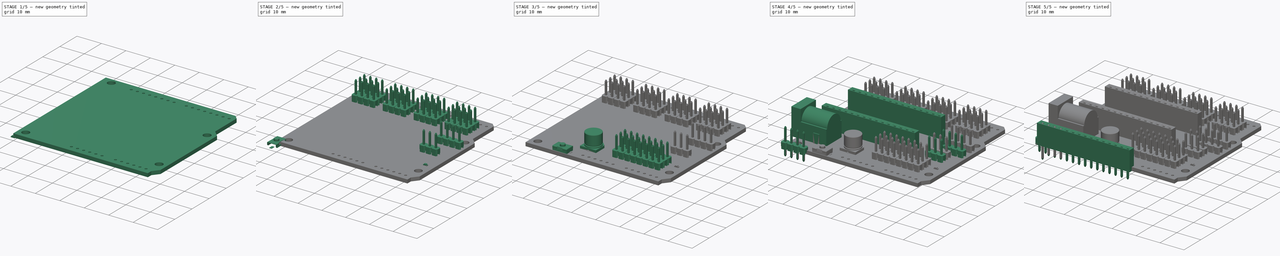
[diagram: build sequence overview — one tinted view per stage of 5, left to right]
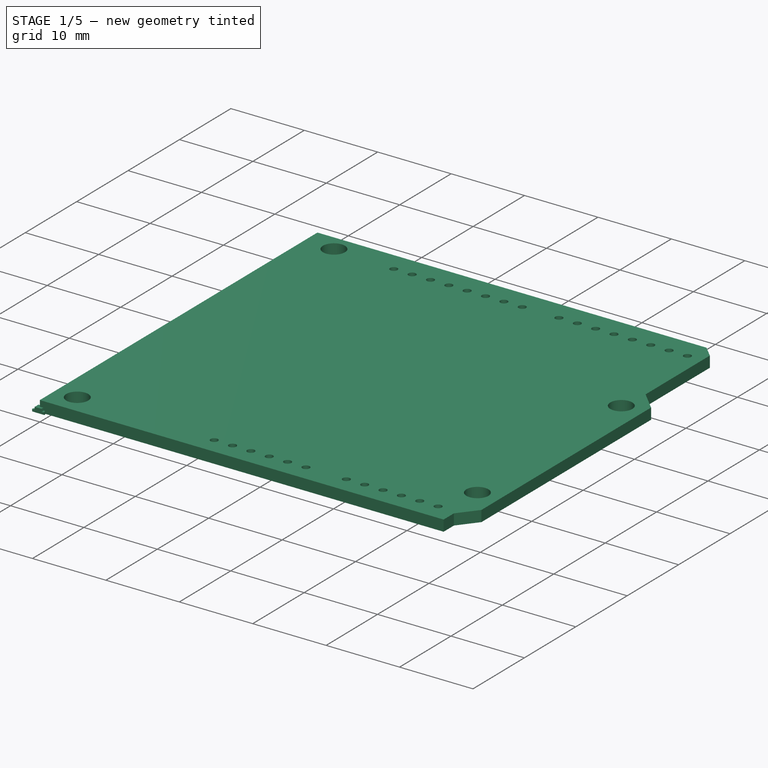
[diagram: stage 1 of 5 — iso view after this stage's code; geometry added in this stage tinted green]
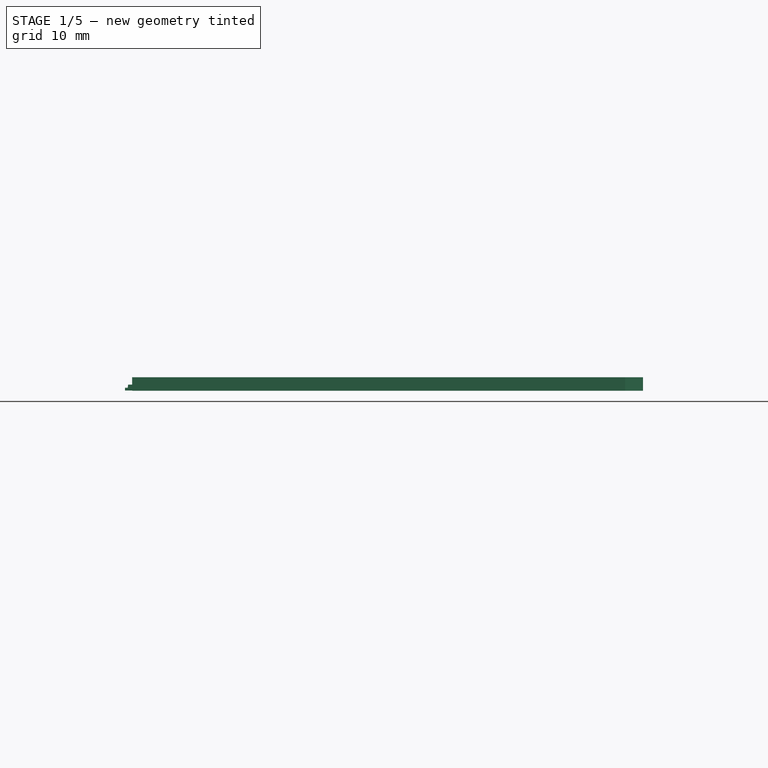
[diagram: stage 1 of 5 — front view after this stage's code; geometry added in this stage tinted green]
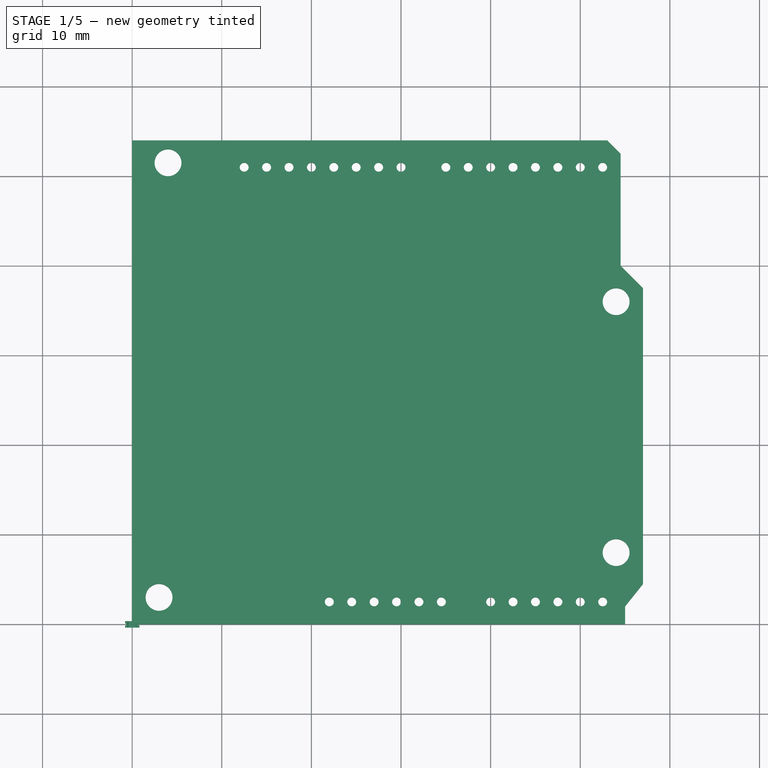
[diagram: stage 1 of 5 — top view after this stage's code; geometry added in this stage tinted green]
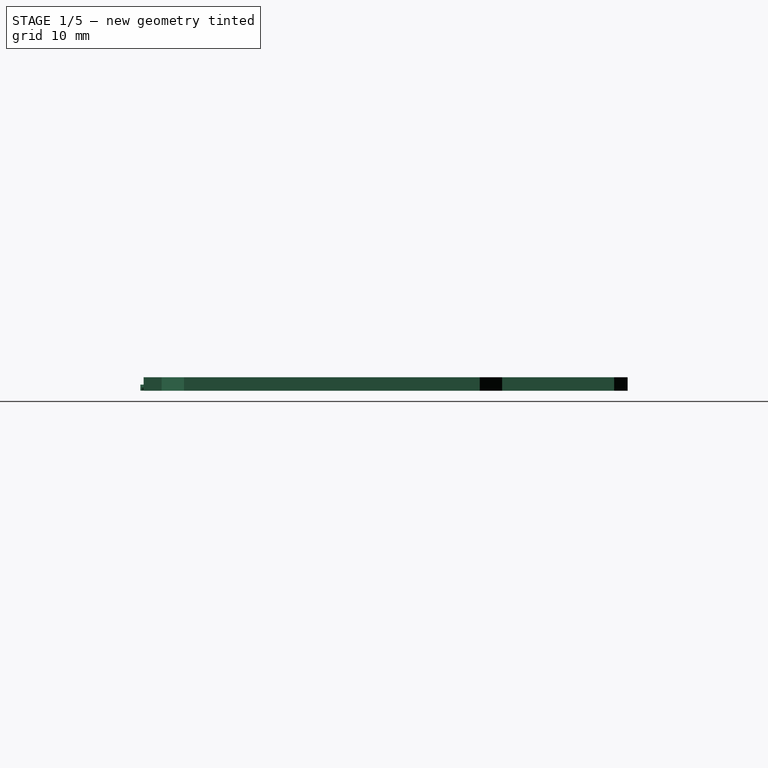
[diagram: stage 1 of 5 — right view after this stage's code; geometry added in this stage tinted green]
FCSTD DOCUMENT  (FreeCAD 0.16R)
Label: nano_expansion_shield
License: All rights reserved
LicenseURL: http://en.wikipedia.org/wiki/All_rights_reserved
objects: Sketcher::SketchObject×45, Part::FeaturePython×45, App::DocumentObjectGroup×24, PartDesign::Pad×19, Part::Feature×19, PartDesign::Pocket×14, Part::MultiFuse×11, Part::Mirroring×9, Part::Compound×8, Part::Loft×5, Part::Fillet×4, Part::Box×3, Part::Cut×2, Part::Cylinder×2, PartDesign::Revolution×1, Part::Part2DObjectPython×1, Part::Extrusion×1, PartDesign::Mirrored×1
note: 224 computed .brp shape members not serialized (recipe doc carries the construction recipe); baked Part::Feature solids carry a one-line shape summary decoded from their .brp

FEATURE [Sketcher::SketchObject] Sketch
  sketch-geometry (13):
    g0: LineSegment StartX=0 StartY=54 StartZ=0 EndX=0 EndY=0 EndZ=0
    g1: LineSegment StartX=0 StartY=0 StartZ=0 EndX=55 EndY=0 EndZ=0
    g2: LineSegment StartX=55 StartY=0 StartZ=0 EndX=55 EndY=2 EndZ=0
    g3: LineSegment StartX=55 StartY=2 StartZ=0 EndX=57 EndY=4.5 EndZ=0
    g4: LineSegment StartX=57 StartY=4.5 StartZ=0 EndX=57 EndY=37.5 EndZ=0
    g5: LineSegment StartX=57 StartY=37.5 StartZ=0 EndX=54.5 EndY=40 EndZ=0
    g6: LineSegment StartX=54.5 StartY=40 StartZ=0 EndX=54.5 EndY=52.5 EndZ=0
    g7: LineSegment StartX=54.5 StartY=52.5 StartZ=0 EndX=53 EndY=54 EndZ=0
    g8: LineSegment StartX=53 StartY=54 StartZ=0 EndX=0 EndY=54 EndZ=0
    g9: Circle CenterX=3 CenterY=3 CenterZ=0 NormalX=0 NormalY=0 NormalZ=1 Radius=1.5
    g10: Circle CenterX=4 CenterY=51.5 CenterZ=0 NormalX=0 NormalY=0 NormalZ=1 Radius=1.5
    g11: Circle CenterX=54 CenterY=8 CenterZ=0 NormalX=0 NormalY=0 NormalZ=1 Radius=1.5
    g12: Circle CenterX=54 CenterY=36 CenterZ=0 NormalX=0 NormalY=0 NormalZ=1 Radius=1.5
  constraints (39):
    c: Vertical(g0)
    c: Coincident(g1,g0)
    c: Horizontal(g1)
    c: Coincident(g3,g2)
    c: Vertical(g4)
    c: Coincident(g6,g5)
    c: Vertical(g6)
    c: Coincident(g7,g6)
    c: Coincident(g8,g0)
    c: Horizontal(g8)
    c: Vertical(g2)
    c: DistanceX(g1,g1) = 55
    c: Coincident(g2,g1)
    c: DistanceY(g0,g0) = 54
    c: Coincident(g8,g7)
    c: DistanceX(g8,g8) = 53
    c: Coincident(g4,g3)
    c: Coincident(g5,g4)
    c: DistanceY(g2,g2) = 2
    c: DistanceY(g4,g4) = 33
    c: DistanceY(g6,g6) = 12.5
    c: DistanceX(g7,g6) = 1.5
    c: DistanceY(g6,g7) = 1.5
    c: DistanceX(g5,g4) = 2.5
    c: DistanceY(g4,g5) = 2.5
    c: DistanceX(g0,g-1) = 0
    c: DistanceY(g0,g-1) = 0
    c: Radius(g9) = 1.5
    c: DistanceX(g-1,g9) = 3
    c: DistanceY(g-1,g9) = 3
    c: Radius(g10) = 1.5
    c: DistanceX(g0,g10) = 4
    c: DistanceY(g10,g0) = 2.5
    c: Radius(g11) = 1.5
    c: DistanceX(g11,g3) = 3
    c: DistanceY(g1,g11) = 8
    c: Radius(g12) = 1.5
    c: DistanceX(g12,g4) = 3
    c: DistanceY(g12,g7) = 18
FEATURE [PartDesign::Pad] Pad  label="Nano_expansion_schield_PCB"
  Length = 1.5
  Length2 = 100
  Sketch = -> Sketch
  Type = 0
FEATURE [Part::Part2DObjectPython] Circle  # Draft 2D object (typed FeaturePython)
  FirstAngle = 0
  LastAngle = 0
  MakeFace = true
  Placement = pos=(0.292125,0.09225,0.145454) rot=(0,0,1;0rad)
  Radius = 0.04
FEATURE [Part::Extrusion] Extrude
  Base = -> Circle
  Dir = (0,0,0.01)
  Placement = pos=(-1.00462,-0.31775,0.209312) rot=(0,0,1;0rad)
  Solid = true
FEATURE [Sketcher::SketchObject] Sketch039  label="body-sketch"
  Placement = pos=(8.646e-09,-1.9082e-08,0.0297664) rot=(0,0,1;0rad)
  sketch-geometry (4):
    g0: LineSegment StartX=-0.8 StartY=0.3625 StartZ=0 EndX=0.8 EndY=0.3625 EndZ=0
    g1: LineSegment StartX=0.8 StartY=0.3625 StartZ=0 EndX=0.8 EndY=-0.3625 EndZ=0
    g2: LineSegment StartX=0.8 StartY=-0.3625 StartZ=0 EndX=-0.8 EndY=-0.3625 EndZ=0
    g3: LineSegment StartX=-0.8 StartY=-0.3625 StartZ=0 EndX=-0.8 EndY=0.3625 EndZ=0
  constraints (4):
    c: Horizontal(g0)
    c: Vertical(g1)
    c: Horizontal(g2)
    c: Vertical(g3)
FEATURE [PartDesign::Pad] Pad015  label="body-pad"
  Length = 0.3
  Length2 = 100
  Placement = pos=(8.646e-09,-1.9082e-08,0.0297664) rot=(0,0,1;0rad)
  Sketch = -> Sketch039
  Type = 0
FEATURE [Sketcher::SketchObject] Sketch040
  ExternalGeometry = -> [Pad015]
  Placement = pos=(8.646e-09,-1.9082e-08,0.329766) rot=(0,0,1;0rad)
  Support = -> Pad015 [Face6]
  sketch-geometry (2):
    g0: ArcOfCircle CenterX=-0.828713 CenterY=0 CenterZ=0 NormalX=0 NormalY=0 NormalZ=1 Radius=0.152707 StartAngle=4.90154 EndAngle=7.66483
    g1: LineSegment StartX=-0.8 StartY=0.149983 StartZ=0 EndX=-0.8 EndY=-0.149983 EndZ=0
  constraints (7):
    c: PointOnObject(g0,g-1)
    c: Vertical(g1)
    c: Coincident(g1,g0)
    c: Coincident(g1,g0)
    c: DistanceX(g0,g-3) = 0.028713
    c: Radius(g0) = 0.152707
    c: PointOnObject(g0,g-3)
FEATURE [PartDesign::Pocket] Pocket001009
  Length = 5
  Placement = pos=(8.646e-09,-1.9082e-08,0.0297664) rot=(0,0,1;0rad)
  Sketch = -> Sketch040
  Type = 1
FEATURE [PartDesign::Mirrored] Mirrored
  MirrorPlane = -> Sketch040 [V_Axis]
  Originals = -> [Pocket001009]
  Placement = pos=(8.646e-09,-1.9082e-08,0.0297664) rot=(0,0,1;0rad)
FEATURE [App::DocumentObjectGroup] Group016  label="body-src"
  Group = -> [Pad015,Pocket001009,Mirrored]
FEATURE [Part::FeaturePython] Clone019  label="led-body"  # Draft clone (typed FeaturePython)
  Objects = -> [Mirrored]
  Placement = pos=(8.646e-09,-1.9082e-08,0.0297664) rot=(0,0,1;0rad)
  Scale = (1,1,1)
FEATURE [Part::Box] Box002  label="Cube001"
  Height = 0.075
  Length = 0.16
  Placement = pos=(-0.0800286,-0.0744368,0.329766) rot=(0,0,1;0rad)
  Width = 0.149
FEATURE [App::DocumentObjectGroup] Group017  label="inner"
  Group = -> [Box002]
FEATURE [Part::FeaturePython] Clone020  label="led-inner"  # Draft clone (typed FeaturePython)
  Objects = -> [Box002]
  Placement = pos=(-0.0800286,-0.0744368,0.329766) rot=(0,0,1;0rad)
  Scale = (1,1,1)
FEATURE [Sketcher::SketchObject] Sketch041  label="led-top-sketch"
  Placement = pos=(4.323e-09,-5.968e-09,0.329766) rot=(1,0,0;1.5708rad)
  sketch-geometry (4):
    g0: LineSegment StartX=0.5 StartY=0 StartZ=0 EndX=-0.5 EndY=0 EndZ=0
    g1: LineSegment StartX=-0.5 StartY=0 StartZ=0 EndX=-0.45 EndY=0.35 EndZ=0
    g2: LineSegment StartX=-0.45 StartY=0.35 StartZ=0 EndX=0.45 EndY=0.35 EndZ=0
    g3: LineSegment StartX=0.45 StartY=0.35 StartZ=0 EndX=0.5 EndY=0 EndZ=0
  constraints (12):
    c: Horizontal(g0)
    c: Coincident(g0,g1)
    c: Coincident(g1,g2)
    c: Horizontal(g2)
    c: Coincident(g2,g3)
    c: Coincident(g3,g0)
    c: PointOnObject(g0,g-1)
    c: Symmetric(g0,g0,g-2)
    c: Symmetric(g1,g2,g-2)
    c: DistanceX(g0,g0) = 1
    c: DistanceX(g2,g2) = 0.9
    c: DistanceY(g0,g2) = 0.35
FEATURE [PartDesign::Pad] Pad016
  Length = 0.725
  Length2 = 100
  Midplane = true
  Placement = pos=(4.323e-09,-5.968e-09,0.329766) rot=(1,0,0;1.5708rad)
  Sketch = -> Sketch041
  Type = 0
FEATURE [App::DocumentObjectGroup] Group018  label="top-src"
  Group = -> [Pad016]
FEATURE [Part::FeaturePython] Clone021  label="led-top"  # Draft clone (typed FeaturePython)
  Objects = -> [Pad016]
  Placement = pos=(4.323e-09,-5.968e-09,0.329766) rot=(1,0,0;1.5708rad)
  Scale = (1,1,1)
FEATURE [Sketcher::SketchObject] Sketch042
  Placement = pos=(0,0,0) rot=(1,0,0;1.5708rad)
  sketch-geometry (9):
    g0: LineSegment StartX=0.225 StartY=0.35 StartZ=0 EndX=0 EndY=0.35 EndZ=0
    g1: LineSegment StartX=0 StartY=0.35 StartZ=0 EndX=0 EndY=0 EndZ=0
    g2: LineSegment StartX=0 StartY=0 StartZ=0 EndX=0.275 EndY=0 EndZ=0
    g3: LineSegment StartX=0.275 StartY=0 StartZ=0 EndX=0.275 EndY=0.025 EndZ=0
    g4: LineSegment StartX=0.275 StartY=0.025 StartZ=0 EndX=0.025 EndY=0.025 EndZ=0
    g5: LineSegment StartX=0.025 StartY=0.025 StartZ=0 EndX=0.025 EndY=0.325 EndZ=0
    g6: LineSegment StartX=0.025 StartY=0.325 StartZ=0 EndX=0.225 EndY=0.325 EndZ=0
    g7: LineSegment StartX=0.225 StartY=0.325 StartZ=0 EndX=0.225 EndY=0.35 EndZ=0
    g8: LineSegment [constr] StartX=0 StartY=0.175 StartZ=0 EndX=0.025 EndY=0.175 EndZ=0
  constraints (27):
    c: Horizontal(g0)
    c: Coincident(g0,g1)
    c: Vertical(g1)
    c: Coincident(g1,g2)
    c: Horizontal(g2)
    c: Coincident(g2,g3)
    c: Vertical(g3)
    c: Coincident(g3,g4)
    c: Horizontal(g4)
    c: Coincident(g4,g5)
    c: Vertical(g5)
    c: Coincident(g5,g6)
    c: Horizontal(g6)
    c: Coincident(g6,g7)
    c: Coincident(g7,g0)
    c: Vertical(g7)
    c: Equal(g7,g3)
    c: PointOnObject(g8,g1)
    c: PointOnObject(g8,g5)
    c: Horizontal(g8)
    c: Symmetric(g5,g4,g8)
    c: Equal(g8,g7)
    c: DistanceY(g7,g7) = 0.025
    c: DistanceY(g1,g1) = 0.35
    c: DistanceX(g0,g0) = 0.225
    c: DistanceX(g2,g2) = 0.275
    c: Coincident(g1,g-1)
FEATURE [PartDesign::Pad] Pad017
  Length = 0.65
  Length2 = 100
  Midplane = true
  Placement = pos=(0,0,0) rot=(1,0,0;1.5708rad)
  Sketch = -> Sketch042
  Type = 0
FEATURE [Sketcher::SketchObject] Sketch043
  Placement = pos=(0,0,0.35) rot=(0,0,1;3.14159rad)
  Support = -> Pad017 [Face1]
  sketch-geometry (2):
    g0: ArcOfCircle CenterX=0 CenterY=0 CenterZ=0 NormalX=0 NormalY=0 NormalZ=1 Radius=0.151 StartAngle=1.5708 EndAngle=4.71239
    g1: LineSegment StartX=0 StartY=0.151 StartZ=0 EndX=0 EndY=-0.151 EndZ=0
  constraints (7):
    c: Coincident(g0,g-1)
    c: PointOnObject(g0,g-2)
    c: PointOnObject(g0,g-2)
    c: Radius(g0) = 0.151
    c: Vertical(g1)
    c: Coincident(g0,g1)
    c: Coincident(g1,g0)
FEATURE [PartDesign::Pad] Pad018
  Length = 10
  Length2 = 100
  Placement = pos=(0,0,0) rot=(1,0,0;1.5708rad)
  Reversed = true
  Sketch = -> Sketch043
  Type = 1
FEATURE [Sketcher::SketchObject] Sketch044
  Placement = pos=(0,0,0) rot=(1,0,0;3.14159rad)
  Support = -> Pad018 [Face7]
  sketch-geometry (2):
    g0: ArcOfCircle CenterX=0 CenterY=0 CenterZ=0 NormalX=0 NormalY=0 NormalZ=1 Radius=0.126 StartAngle=4.55298 EndAngle=8.01339
    g1: LineSegment StartX=-0.02 StartY=0.124403 StartZ=0 EndX=-0.02 EndY=-0.124403 EndZ=0
  constraints (6):
    c: Coincident(g0,g-1)
    c: Vertical(g1)
    c: Coincident(g1,g0)
    c: Coincident(g1,g0)
    c: Radius(g0) = 0.126
    c: DistanceX(g0,g-1) = 0.02
FEATURE [PartDesign::Pocket] Pocket001010
  Length = 5
  Placement = pos=(0,0,0) rot=(1,0,0;1.5708rad)
  Sketch = -> Sketch044
  Type = 1
FEATURE [App::DocumentObjectGroup] Group019  label="side-src"
  Group = -> [Pad017,Pad018,Pocket001010]
FEATURE [Part::FeaturePython] Clone022  label="led-side"  # Draft clone (typed FeaturePython)
  Objects = -> [Pocket001010]
  Placement = pos=(-0.825,-7.16e-09,0.00476642) rot=(1,0,0;1.5708rad)
  Scale = (1,1,1)
FEATURE [Part::Mirroring] Part__Mirroring008  label="led-side (Mirror #1)"
  Base = (0,0,0)
  Normal = (1,0,0)
  Source = -> Clone022
FEATURE [App::DocumentObjectGroup] Group020  label="mark-src"
  Group = -> [Extrude]
FEATURE [Part::FeaturePython] Clone023  label="mark"  # Draft clone (typed FeaturePython)
  Objects = -> [Extrude]
  Placement = pos=(-1.00462,-0.31775,0.209312) rot=(0,0,1;0rad)
  Scale = (1,1,1)
FEATURE [Part::Cylinder] Cylinder001  label="pcb_drill"
  Angle = 360
  Height = 1.5
  Radius = 0.5
FEATURE [App::DocumentObjectGroup] Group022  label="PCB_src"
  Group = -> [Cylinder001]
FEATURE [Part::FeaturePython] Clone030  label="a_pcb_drill"  # Draft clone (typed FeaturePython)
  Objects = -> [Cylinder001]
  Scale = (1,1,1)
FEATURE [Part::FeaturePython] Array002011  label="a0-5_pcb_drills"  # Draft array (typed FeaturePython)
  Angle = 360
  ArrayType = 0
  Axis = (0,0,1)
  Base = -> Clone030
  Center = (0,0,0)
  Fuse = false
  IntervalAxis = (0,0,0)
  IntervalX = (2.5,0,0)
  IntervalY = (0,1,0)
  IntervalZ = (0,0,0)
  NumberPolar = 1
  NumberX = 6
  NumberY = 1
  NumberZ = 1
FEATURE [Part::FeaturePython] Array002012  label="a_pcb_drills"  # Draft array (typed FeaturePython)
  Angle = 360
  ArrayType = 0
  Axis = (0,0,1)
  Base = -> Array002011
  Center = (0,0,0)
  Fuse = false
  IntervalAxis = (0,0,0)
  IntervalX = (18,0,0)
  IntervalY = (0,1,0)
  IntervalZ = (0,0,0)
  NumberPolar = 1
  NumberX = 2
  NumberY = 1
  NumberZ = 1
  Placement = pos=(22,2.5,0) rot=(0,0,1;0rad)
FEATURE [Part::FeaturePython] Clone031  label="d_pcb_drill"  # Draft clone (typed FeaturePython)
  Objects = -> [Cylinder001]
  Scale = (1,1,1)
FEATURE [Part::FeaturePython] Array002013  label="d0-7_pcb_drills"  # Draft array (typed FeaturePython)
  Angle = 360
  ArrayType = 0
  Axis = (0,0,1)
  Base = -> Clone031
  Center = (0,0,0)
  Fuse = false
  IntervalAxis = (0,0,0)
  IntervalX = (2.5,0,0)
  IntervalY = (0,1,0)
  IntervalZ = (0,0,0)
  NumberPolar = 1
  NumberX = 8
  NumberY = 1
  NumberZ = 1
FEATURE [Part::FeaturePython] Array002014  label="d_pcb_drills"  # Draft array (typed FeaturePython)
  Angle = 360
  ArrayType = 0
  Axis = (0,0,1)
  Base = -> Array002013
  Center = (0,0,0)
  Fuse = false
  IntervalAxis = (0,0,0)
  IntervalX = (22.5,0,0)
  IntervalY = (0,1,0)
  IntervalZ = (0,0,0)
  NumberPolar = 1
  NumberX = 2
  NumberY = 1
  NumberZ = 1
  Placement = pos=(12.5,51,0) rot=(0,0,1;0rad)
FEATURE [Part::MultiFuse] Fusion003011  label="pcb_drills"
  Shapes = -> [Array002014,Array002012]
FEATURE [Part::Cut] Cut003  label="PCB"
  Base = -> Pad
  Tool = -> Fusion003011
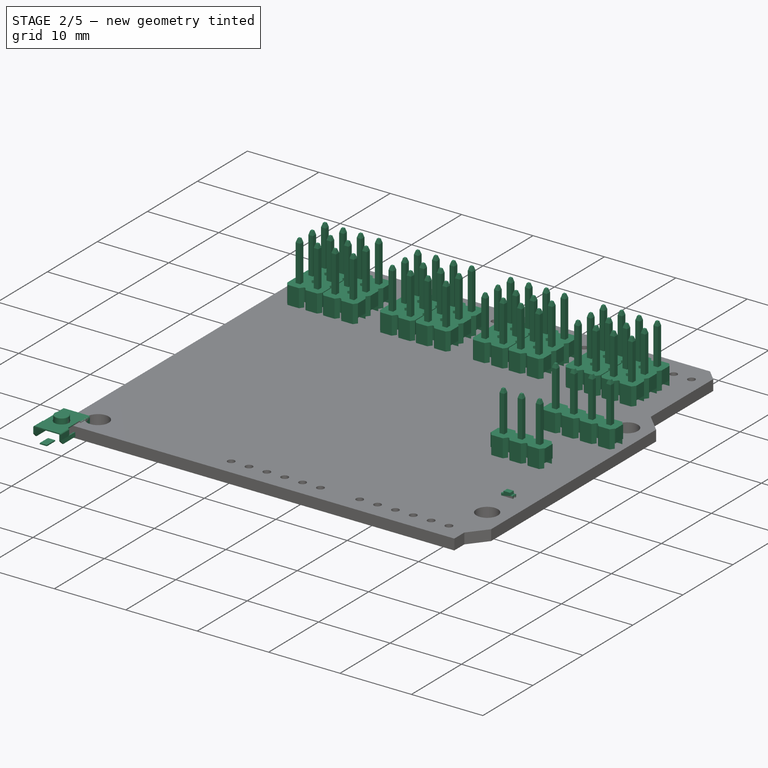
[diagram: stage 2 of 5 — iso view after this stage's code; geometry added in this stage tinted green]
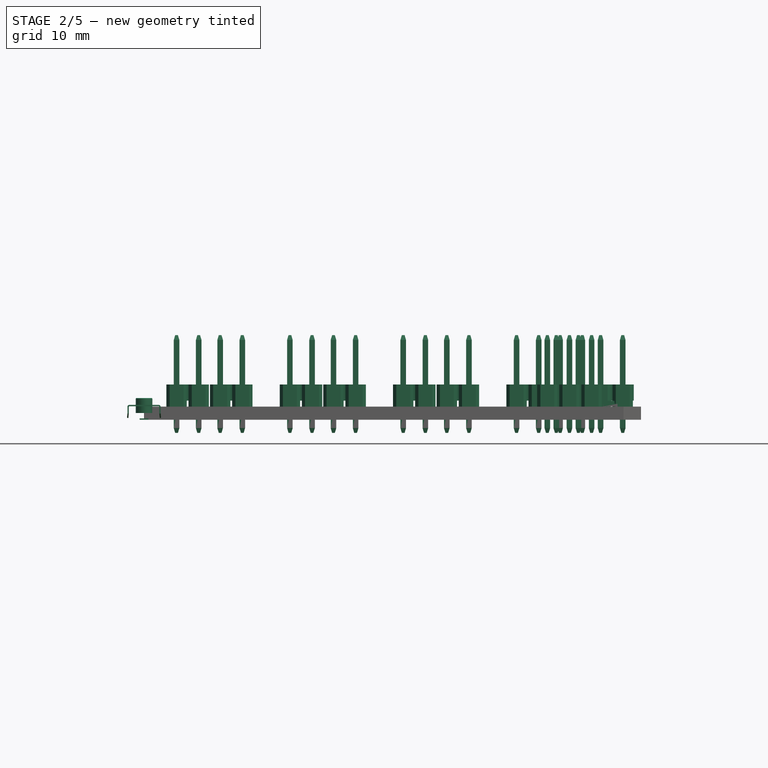
[diagram: stage 2 of 5 — front view after this stage's code; geometry added in this stage tinted green]
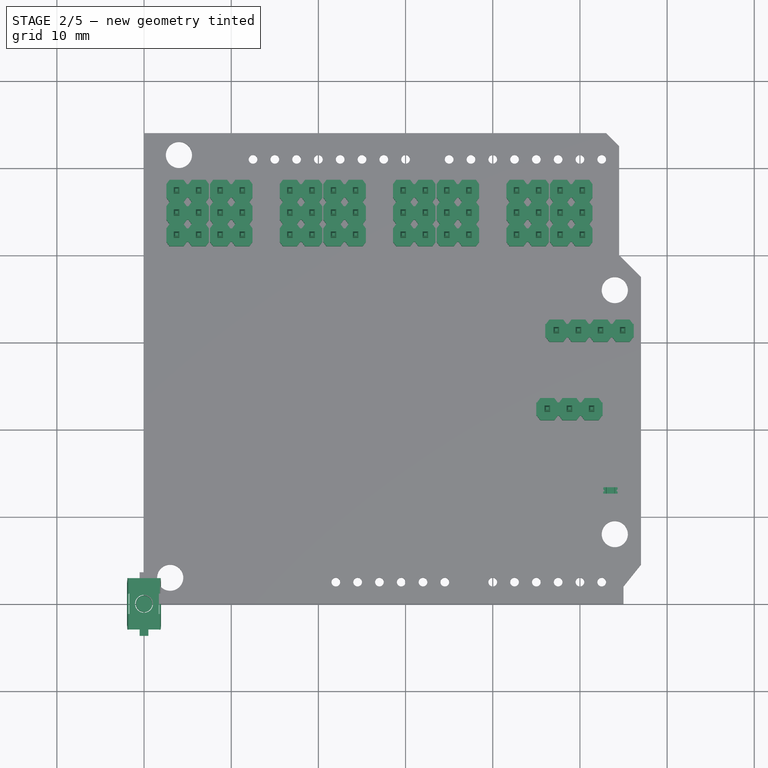
[diagram: stage 2 of 5 — top view after this stage's code; geometry added in this stage tinted green]
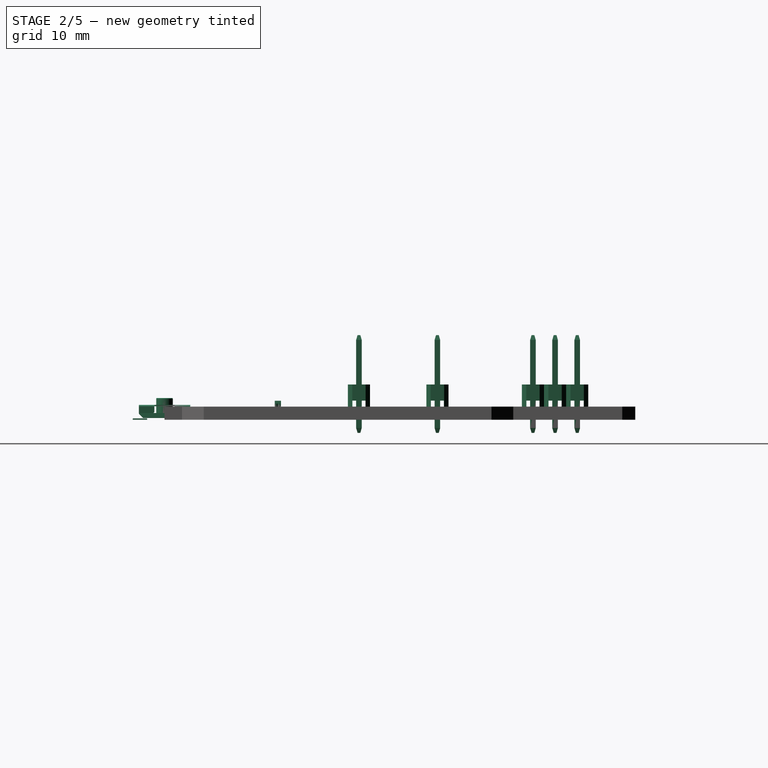
[diagram: stage 2 of 5 — right view after this stage's code; geometry added in this stage tinted green]
FEATURE [Part::Feature] Fusion003001  label="2x1-male-pin-header-1"
  shape: bbox 4.88 x 2.54 x 11.2 mm, 66 faces (baked)
FEATURE [Part::Feature] Fusion003002  label="2x1-male-pin-header-2"
  Placement = pos=(0,-2.54,0) rot=(0,0,1;0rad)
  shape: bbox 4.88 x 2.54 x 11.2 mm, 66 faces (baked)
FEATURE [Part::Feature] Fusion003003  label="2x1-male-pin-header-003"
  Placement = pos=(0,2.54,0) rot=(0,0,1;0rad)
  shape: bbox 4.88 x 2.54 x 11.2 mm, 66 faces (baked)
FEATURE [Part::Compound] Compound  label="2x3-male-pin-header"
  Links = -> [Fusion003001,Fusion003002,Fusion003003]
FEATURE [Sketcher::SketchObject] Sketch023  label="cover-sketch"
  Placement = pos=(0,0,0) rot=(1,0,0;1.5708rad)
  sketch-geometry (14):
    g0: LineSegment StartX=1.7 StartY=1.7 StartZ=0 EndX=0 EndY=1.7 EndZ=0
    g1: LineSegment StartX=0 StartY=1.7 StartZ=0 EndX=0 EndY=1.55 EndZ=0
    g2: LineSegment StartX=0 StartY=1.55 StartZ=0 EndX=1.7 EndY=1.55 EndZ=0
    g3: LineSegment StartX=1.75 StartY=1.5 StartZ=0 EndX=1.75 EndY=0.775 EndZ=0
    g4: LineSegment StartX=1.75 StartY=0.775 StartZ=0 EndX=1.8006 EndY=0.200071 EndZ=0
    g5: LineSegment StartX=1.8006 StartY=0.200071 StartZ=0 EndX=1.94945 EndY=0.213172 EndZ=0
    g6: LineSegment StartX=1.94945 StartY=0.213172 StartZ=0 EndX=1.9 EndY=0.775 EndZ=0
    g7: LineSegment StartX=1.9 StartY=0.775 StartZ=0 EndX=1.9 EndY=1.5 EndZ=0
    g8: LineSegment [constr] StartX=1.7 StartY=1.7 StartZ=0 EndX=1.7 EndY=1.55 EndZ=0
    g9: LineSegment [constr] StartX=1.75 StartY=1.5 StartZ=0 EndX=1.9 EndY=1.5 EndZ=0
    g10: ArcOfCircle CenterX=1.7 CenterY=1.5 CenterZ=0 NormalX=0 NormalY=0 NormalZ=1 Radius=0.05 StartAngle=6.28319 EndAngle=7.85398
    g11: ArcOfCircle CenterX=1.7 CenterY=1.5 CenterZ=0 NormalX=0 NormalY=0 NormalZ=1 Radius=0.2 StartAngle=-9.72e-10 EndAngle=1.5708
    g12: LineSegment [constr] StartX=1.75 StartY=0.775 StartZ=0 EndX=1.9 EndY=0.775 EndZ=0
    g13: LineSegment [constr] StartX=1.75 StartY=0.775 StartZ=0 EndX=1.75 EndY=0 EndZ=0
  constraints (40):
    c: PointOnObject(g0,g-2)
    c: Horizontal(g0)
    c: Coincident(g0,g1)
    c: Vertical(g1)
    c: Coincident(g1,g2)
    c: Horizontal(g2)
    c: Vertical(g3)
    c: Coincident(g3,g4)
    c: Coincident(g4,g5)
    c: Coincident(g5,g6)
    c: Coincident(g6,g7)
    c: Vertical(g7)
    c: Coincident(g8,g0)
    c: Coincident(g8,g2)
    c: Vertical(g8)
    c: Horizontal(g9)
    c: Coincident(g3,g9)
    c: Coincident(g7,g9)
    c: Coincident(g11,g10)
    c: Coincident(g10,g2)
    c: Coincident(g10,g3)
    c: PointOnObject(g10,g8)
    c: Equal(g8,g9)
    c: Coincident(g11,g0)
    c: Coincident(g11,g7)
    c: DistanceY(g1,g1) = 0.15
    c: DistanceY(g-1,g1) = 1.55
    c: DistanceX(g2,g2) = 1.7
    c: DistanceX(g-1,g3) = 1.75
    c: Horizontal(g12)
    c: Coincident(g12,g3)
    c: Coincident(g12,g6)
    c: DistanceY(g7,g7) = 0.725
    c: PointOnObject(g13,g-1)
    c: Vertical(g13)
    c: Coincident(g13,g3)
    c: Angle(g13,g4) = 0.0877901
    c: Perpendicular(g5,g4)
    c: Parallel(g4,g6)
    c: Distance(g6) = 0.564
FEATURE [PartDesign::Pad] Pad010
  Length = 2.95
  Length2 = 100
  Placement = pos=(0,0,0) rot=(1,0,0;1.5708rad)
  Sketch = -> Sketch023
  Type = 0
FEATURE [Sketcher::SketchObject] Sketch024
  Placement = pos=(0,0,1.7) rot=(0,0,1;3.14159rad)
  Support = -> Pad010 [Face1]
  sketch-geometry (3):
    g0: ArcOfCircle CenterX=0 CenterY=0 CenterZ=0 NormalX=0 NormalY=0 NormalZ=1 Radius=1.02 StartAngle=1.5708 EndAngle=3.14159
    g1: LineSegment StartX=0 StartY=1.02 StartZ=0 EndX=0 EndY=0 EndZ=0
    g2: LineSegment StartX=0 StartY=0 StartZ=0 EndX=-1.02 EndY=0 EndZ=0
  constraints (9):
    c: Coincident(g0,g-1)
    c: PointOnObject(g0,g-1)
    c: PointOnObject(g0,g-2)
    c: Coincident(g0,g1)
    c: Coincident(g1,g2)
    c: Coincident(g2,g0)
    c: Horizontal(g2)
    c: Coincident(g1,g-1)
    c: Radius(g0) = 1.02
FEATURE [PartDesign::Pocket] Pocket002
  Length = 5
  Placement = pos=(0,0,0) rot=(1,0,0;1.5708rad)
  Sketch = -> Sketch024
  Type = 1
FEATURE [Sketcher::SketchObject] Sketch025
  ExternalGeometry = -> [Pocket002]
  Placement = pos=(1.9,0,0) rot=(0.707107,0,0.707107;3.14159rad)
  Support = -> Pocket002 [Face13]
  sketch-geometry (6):
    g0: LineSegment StartX=0.775 StartY=0 StartZ=0 EndX=1.7 EndY=0 EndZ=0
    g1: LineSegment StartX=1.7 StartY=0 StartZ=0 EndX=1.7 EndY=1.172 EndZ=0
    g2: LineSegment StartX=1.7 StartY=1.172 StartZ=0 EndX=0.8506 EndY=1.172 EndZ=0
    g3: ArcOfCircle CenterX=0.775 CenterY=1.172 CenterZ=0 NormalX=0 NormalY=0 NormalZ=1 Radius=0.0756 StartAngle=0 EndAngle=1.5708
    g4: LineSegment StartX=0.775 StartY=1.172 StartZ=0 EndX=0.775 EndY=0 EndZ=0
    g5: LineSegment StartX=0.775 StartY=1.2476 StartZ=0 EndX=0.775 EndY=1.172 EndZ=0
  constraints (19):
    c: Horizontal(g0)
    c: Coincident(g0,g1)
    c: Vertical(g1)
    c: Coincident(g1,g2)
    c: Horizontal(g2)
    c: Coincident(g0,g-4)
    c: Coincident(g0,g-3)
    c: DistanceY(g0,g1) = 1.172
    c: PointOnObject(g3,g-4)
    c: Coincident(g3,g2)
    c: Radius(g3) = 0.0756
    c: PointOnObject(g3,g-4)
    c: PointOnObject(g3,g2)
    c: Vertical(g4)
    c: Coincident(g4,g3)
    c: Coincident(g4,g0)
    c: Vertical(g5)
    c: Coincident(g5,g3)
    c: Coincident(g5,g3)
FEATURE [PartDesign::Pocket] Pocket003
  Length = 0.2
  Placement = pos=(0,0,0) rot=(1,0,0;1.5708rad)
  Sketch = -> Sketch025
  Type = 0
FEATURE [Sketcher::SketchObject] Sketch026
  ExternalGeometry = -> [Pocket003]
  Placement = pos=(1.95308,0,0.171903) rot=(0.675397,0,0.737454;3.14159rad)
  Support = -> Pocket003 [Face15]
  sketch-geometry (3):
    g0: LineSegment StartX=0.0414285 StartY=2.45 StartZ=0 EndX=0.541428 EndY=2.95 EndZ=0
    g1: LineSegment StartX=0.541428 StartY=2.95 StartZ=0 EndX=0.0414285 EndY=2.95 EndZ=0
    g2: LineSegment StartX=0.0414285 StartY=2.95 StartZ=0 EndX=0.0414285 EndY=2.45 EndZ=0
  constraints (8):
    c: Horizontal(g1)
    c: Coincident(g1,g2)
    c: Coincident(g2,g0)
    c: PointOnObject(g0,g-3)
    c: Coincident(g1,g0)
    c: Coincident(g1,g-3)
    c: DistanceX(g1,g1) = 0.5
    c: DistanceY(g0,g1) = 0.5
FEATURE [PartDesign::Pocket] Pocket004
  Length = 5
  Placement = pos=(0,0,0) rot=(1,0,0;1.5708rad)
  Sketch = -> Sketch026
  Type = 1
FEATURE [Part::Mirroring] Part__Mirroring003  label="Pocket004 (Mirror #3)"
  Base = (0,0,0)
  Normal = (0,1,0)
  Source = -> Pocket004
FEATURE [Part::MultiFuse] Fusion003007
  Shapes = -> [Part__Mirroring003,Pocket004]
FEATURE [Part::Mirroring] Part__Mirroring004  label="Fusion003 (Mirror #4)"
  Base = (0,0,0)
  Normal = (1,0,0)
  Source = -> Fusion003007
FEATURE [Part::MultiFuse] Fusion003008
  Shapes = -> [Part__Mirroring004,Fusion003007]
FEATURE [App::DocumentObjectGroup] Group007  label="cover-src"
  Group = -> [Pad010,Pocket002,Pocket003,Fusion003008]
FEATURE [Part::FeaturePython] Clone007  label="cover"  # Draft clone (typed FeaturePython)
  Objects = -> [Fusion003008]
  Scale = (1,1,1)
FEATURE [Part::Cylinder] Cylinder
  Angle = 360
  Height = 1.725
  Placement = pos=(4e-12,-1e-12,0.775) rot=(0,0,1;0rad)
  Radius = 0.95
FEATURE [Part::Fillet] Fillet003
  Base = -> Cylinder
  Edges = 1 edges r=0.1: [Edge1]
FEATURE [App::DocumentObjectGroup] Group008  label="button-src"
  Group = -> [Fillet003]
FEATURE [Part::FeaturePython] Clone008  label="button"  # Draft clone (typed FeaturePython)
  Objects = -> [Fillet003]
  Scale = (1,1,1)
FEATURE [Part::Box] Box001  label="pin1-src"
  Height = 0.15
  Length = 1
  Placement = pos=(-0.5,-3.65,0.001) rot=(0,0,1;0rad)
  Width = 1.65
FEATURE [Part::Mirroring] Part__Mirroring005  label="pin1 (Mirror #5)"
  Base = (0,0,0)
  Normal = (0,1,0)
  Source = -> Box001
FEATURE [App::DocumentObjectGroup] Group009  label="pins004"
  Group = -> [Box001,Part__Mirroring005]
FEATURE [Part::FeaturePython] Clone009  label="pin1"  # Draft clone (typed FeaturePython)
  Objects = -> [Box001]
  Placement = pos=(-0.5,-3.65,0.001) rot=(0,0,1;0rad)
  Scale = (1,1,1)
FEATURE [Part::FeaturePython] Clone010  label="pin2"  # Draft clone (typed FeaturePython)
  Objects = -> [Part__Mirroring005]
  Scale = (1,1,1)
FEATURE [App::DocumentObjectGroup] Group012  label="pin-src001"
  Group = -> [Loft003,Pad011,Part__Mirroring006,Fusion003009,Array002003]
FEATURE [Part::Feature] Array003  label="pin-support-array"
  Placement = pos=(-2.54,0,0) rot=(0,0,1;0rad)
  shape: bbox 7.62 x 2.54 x 2.54 mm, 66 faces, 3 solids (baked)
FEATURE [Part::Feature] Array002004  label="pin-array"
  Placement = pos=(-2.54,0,0) rot=(0,0,1;0rad)
  shape: bbox 5.72 x 0.64 x 11.2 mm, 42 faces, 3 solids (baked)
FEATURE [Part::Compound] Compound004  label="gnd_pins"
  Links = -> [Array002004,Array003]
  Placement = pos=(48.8,19.3,1.5) rot=(0,0,1;0rad)
FEATURE [Part::FeaturePython] Clone016  label="3v3_pins"  # Draft clone (typed FeaturePython)
  Objects = -> [Compound004]
  Placement = pos=(48.8,22.3,1.5) rot=(0,0,1;0rad)
  Scale = (1,1,1)
FEATURE [App::DocumentObjectGroup] Group014  label="pin-src002"
  Group = -> [Loft004,Pad013,Part__Mirroring007,Fusion003010,Array002006]
FEATURE [App::DocumentObjectGroup] Group001  label="pins_srcs"
  Group = -> [Group,Group002,Group003,Fusion005,Part__Feature,Compound,Group011,Group012,Group013,Group014]
FEATURE [Part::Feature] Array002007  label="pin-support-array001"
  Placement = pos=(-3.81,0,0) rot=(0,0,1;0rad)
  shape: bbox 10.16 x 2.54 x 2.54 mm, 88 faces, 4 solids (baked)
FEATURE [Part::Feature] Array002008  label="pin-array001"
  Placement = pos=(-3.81,0,0) rot=(0,0,1;0rad)
  shape: bbox 8.26 x 0.64 x 11.2 mm, 56 faces, 4 solids (baked)
FEATURE [Part::Compound] Compound005  label="scl_sda_pins"
  Links = -> [Array002008,Array002007]
  Placement = pos=(51.1,26.3,1.5) rot=(0,0,1;0rad)
FEATURE [Part::FeaturePython] Clone017  label="rx_tx_pins"  # Draft clone (typed FeaturePython)
  Objects = -> [Compound005]
  Placement = pos=(51.1,31.3,1.5) rot=(0,0,1;0rad)
  Scale = (1,1,1)
FEATURE [Part::FeaturePython] Clone018  label="d_pins_single"  # Draft clone (typed FeaturePython)
  Objects = -> [Compound]
  Scale = (1,1,1)
FEATURE [Part::FeaturePython] Array002009  label="d_pins_pair"  # Draft array (typed FeaturePython)
  Angle = 360
  ArrayType = 0
  Axis = (0,0,1)
  Base = -> Clone018
  Center = (0,0,0)
  Fuse = false
  IntervalAxis = (0,0,0)
  IntervalX = (5,0,0)
  IntervalY = (0,1,0)
  IntervalZ = (0,0,0)
  NumberPolar = 1
  NumberX = 2
  NumberY = 1
  NumberZ = 1
FEATURE [Part::FeaturePython] Array002010  label="d_pins_all"  # Draft array (typed FeaturePython)
  Angle = 360
  ArrayType = 0
  Axis = (0,0,1)
  Base = -> Array002009
  Center = (0,0,0)
  Fuse = false
  IntervalAxis = (0,0,0)
  IntervalX = (13,0,0)
  IntervalY = (0,1,0)
  IntervalZ = (0,0,0)
  NumberPolar = 1
  NumberX = 4
  NumberY = 1
  NumberZ = 1
  Placement = pos=(5,44.8,1.5) rot=(0,0,1;0rad)
FEATURE [App::DocumentObjectGroup] Group021  label="rescaled-for-kicad"
  Group = -> [Clone024,Clone025,Clone026,Clone027,Clone028,Clone029]
FEATURE [App::DocumentObjectGroup] Group015  label="led_src"
  Group = -> [Group016,Group017,Group018,Group019,Group020,Group021]
FEATURE [Part::Compound] Compound006  label="led_powed"
  Links = -> [Clone019,Clone022,Clone023,Clone021,Clone020,Part__Mirroring008]
  Placement = pos=(53.5,13,1.5) rot=(0,0,1;0rad)
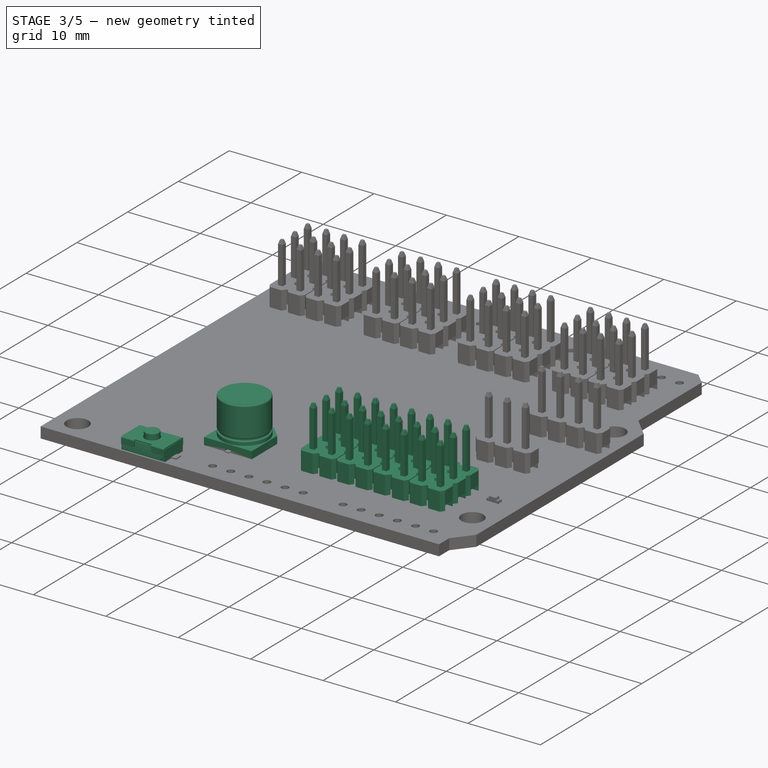
[diagram: stage 3 of 5 — iso view after this stage's code; geometry added in this stage tinted green]
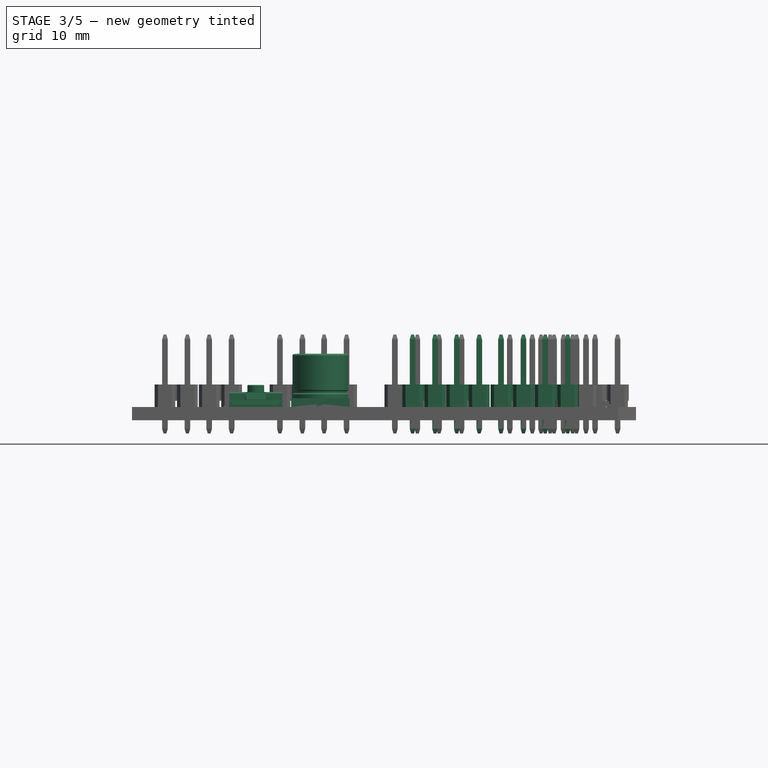
[diagram: stage 3 of 5 — front view after this stage's code; geometry added in this stage tinted green]
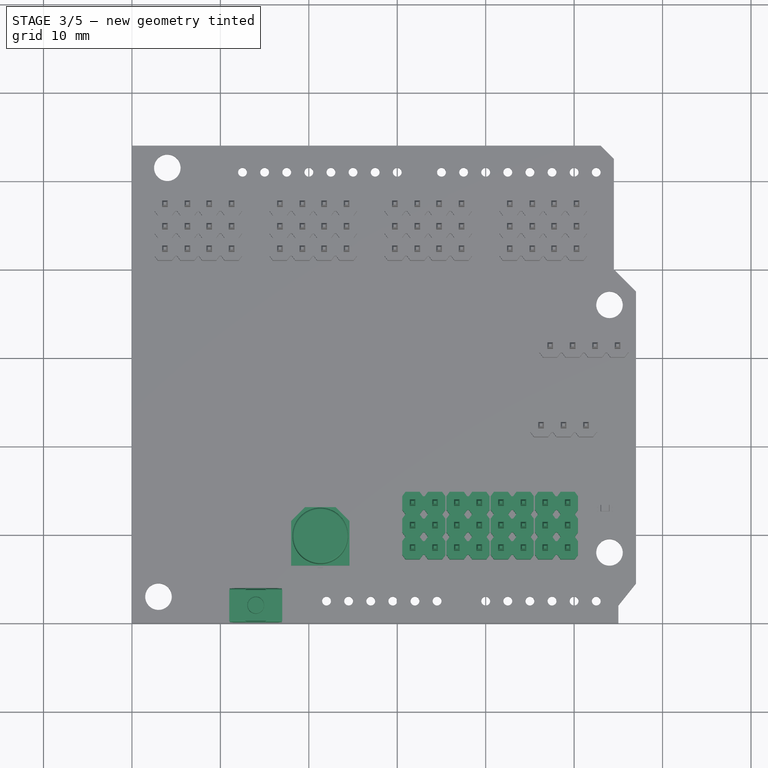
[diagram: stage 3 of 5 — top view after this stage's code; geometry added in this stage tinted green]
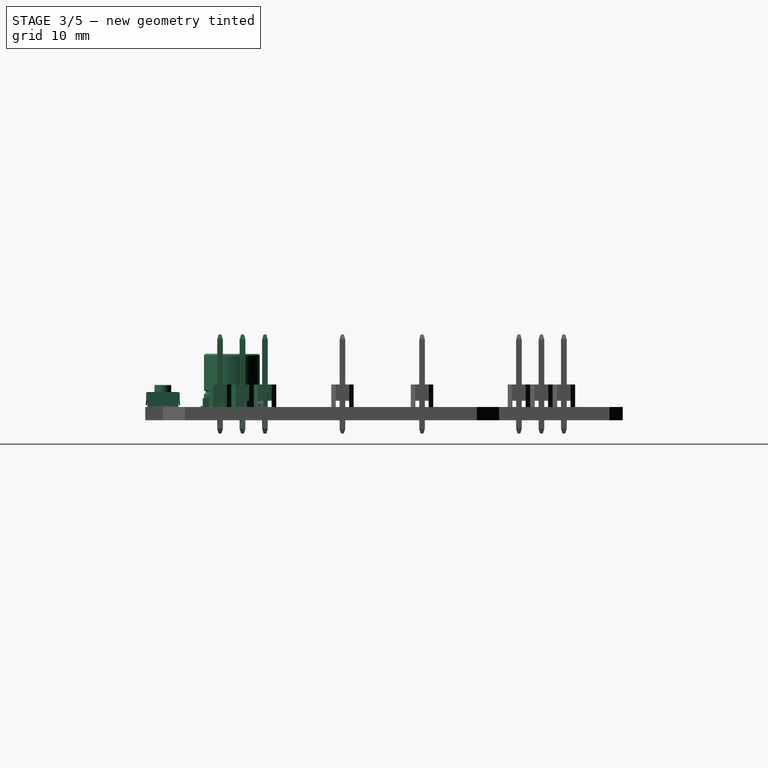
[diagram: stage 3 of 5 — right view after this stage's code; geometry added in this stage tinted green]
FEATURE [Part::FeaturePython] Clone001  label="Clone of 2x3-male-pin-header"  # Draft clone (typed FeaturePython)
  Objects = -> [Compound]
  Placement = pos=(0,0,1.5) rot=(0,0,1;0rad)
  Scale = (1,1,1)
FEATURE [Part::FeaturePython] Array  label="a_pins_array"  # Draft array (typed FeaturePython)
  Angle = 360
  ArrayType = 0
  Axis = (0,0,1)
  Base = -> Clone001
  Center = (0,0,0)
  Fuse = false
  IntervalAxis = (0,0,0)
  IntervalX = (5,0,0)
  IntervalY = (0,1,0)
  IntervalZ = (0,0,0)
  NumberPolar = 1
  NumberX = 4
  NumberY = 1
  NumberZ = 1
  Placement = pos=(33,11,0) rot=(0,0,1;0rad)
FEATURE [Sketcher::SketchObject] Sketch015  label="capsmd4x3-sketch"
  Placement = pos=(0,0,0) rot=(1,0,0;1.5708rad)
  sketch-geometry (8):
    g0: LineSegment StartX=0 StartY=0 StartZ=0 EndX=-3.15 EndY=0 EndZ=0
    g1: LineSegment StartX=-3.15 StartY=0 StartZ=0 EndX=-3.15 EndY=0.58 EndZ=0
    g2: LineSegment StartX=-2.95 StartY=0.58 StartZ=0 EndX=-2.95 EndY=0.78 EndZ=0
    g3: LineSegment StartX=-3.15 StartY=0.78 StartZ=0 EndX=-3.15 EndY=5 EndZ=0
    g4: LineSegment StartX=-3.15 StartY=5 StartZ=0 EndX=0 EndY=5 EndZ=0
    g5: LineSegment StartX=0 StartY=5 StartZ=0 EndX=0 EndY=0 EndZ=0
    g6: LineSegment StartX=-3.15 StartY=0.78 StartZ=0 EndX=-2.95 EndY=0.78 EndZ=0
    g7: LineSegment StartX=-3.15 StartY=0.58 StartZ=0 EndX=-2.95 EndY=0.58 EndZ=0
  constraints (23):
    c: Coincident(g0,g1)
    c: Vertical(g1)
    c: Vertical(g2)
    c: Vertical(g3)
    c: Horizontal(g4)
    c: Coincident(g4,g5)
    c: Coincident(g5,g-1)
    c: Vertical(g5)
    c: Coincident(g0,g-1)
    c: Horizontal(g0)
    c: DistanceX(g0) = -3.15
    c: DistanceY(g5) = -5
    c: DistanceY(g2) = 0.2
    c: DistanceY(g0,g2) = 0.58
    c: Coincident(g3,g4)
    c: Horizontal(g6)
    c: Coincident(g6,g3)
    c: Coincident(g6,g2)
    c: PointOnObject(g3,g1)
    c: DistanceX(g6) = 0.2
    c: Horizontal(g7)
    c: Coincident(g7,g1)
    c: Coincident(g7,g2)
FEATURE [PartDesign::Revolution] Revolution  label="cylinder"
  Angle = 360
  Axis = (0,0,1)
  Base = (0,0,0)
  Placement = pos=(0,0,0) rot=(1,0,0;1.5708rad)
  ReferenceAxis = -> Sketch015 [V_Axis]
  Sketch = -> Sketch015
FEATURE [Part::Fillet] Fillet
  Base = -> Revolution
  Edges = 1 edges r=0.2: [Edge2]
FEATURE [Part::Fillet] Fillet001  label="main-body001"
  Base = -> Fillet
  Edges = 2 edges r=0.19: [Edge3,Edge9]
FEATURE [Sketcher::SketchObject] Sketch016  label="base-sketch"
  sketch-geometry (8):
    g0: LineSegment StartX=3.3 StartY=1.73 StartZ=0 EndX=3.3 EndY=-3.3 EndZ=0
    g1: LineSegment StartX=3.3 StartY=-3.3 StartZ=0 EndX=-3.3 EndY=-3.3 EndZ=0
    g2: LineSegment StartX=-3.3 StartY=-3.3 StartZ=0 EndX=-3.3 EndY=1.73 EndZ=0
    g3: LineSegment StartX=-3.3 StartY=1.73 StartZ=0 EndX=-1.73 EndY=3.3 EndZ=0
    g4: LineSegment StartX=-1.73 StartY=3.3 StartZ=0 EndX=1.73 EndY=3.3 EndZ=0
    g5: LineSegment StartX=1.73 StartY=3.3 StartZ=0 EndX=3.3 EndY=1.73 EndZ=0
    g6: LineSegment [constr] StartX=-3.3 StartY=1.73 StartZ=0 EndX=3.3 EndY=1.73 EndZ=0
    g7: LineSegment [constr] StartX=0 StartY=3.3 StartZ=0 EndX=0 EndY=-3.3 EndZ=0
  constraints (25):
    c: Coincident(g0,g1)
    c: Coincident(g1,g2)
    c: Horizontal(g1)
    c: Vertical(g0)
    c: Vertical(g2)
    c: Symmetric(g1,g0,g-2)
    c: Symmetric(g2,g0,g-2)
    c: Coincident(g3,g4)
    c: Coincident(g4,g5)
    c: Horizontal(g6)
    c: Coincident(g6,g2)
    c: Coincident(g6,g0)
    c: Coincident(g3,g2)
    c: Coincident(g5,g0)
    c: Angle(g6,g3) = 0.785398
    c: Horizontal(g4)
    c: Symmetric(g3,g4,g-2)
    c: DistanceX(g1) = -6.6
    c: Vertical(g7)
    c: PointOnObject(g7,g-2)
    c: PointOnObject(g7,g4)
    c: PointOnObject(g7,g1)
    c: Symmetric(g7,g7,g-1)
    c: DistanceY(g4,g0) = -6.6
    c: DistanceX(g4) = 3.46
FEATURE [PartDesign::Pad] Pad007  label="base"
  Length = 1
  Length2 = 100
  Reversed = true
  Sketch = -> Sketch016
  Type = 0
FEATURE [Sketcher::SketchObject] Sketch017  label="base-cutout-1-sketch"
  Placement = pos=(0,0,-1) rot=(1,0,0;3.14159rad)
  Support = -> Pad007 [Face8]
  sketch-geometry (8):
    g0: LineSegment StartX=-0.4 StartY=3.415 StartZ=0 EndX=0.4 EndY=3.415 EndZ=0
    g1: LineSegment StartX=0.4 StartY=3.415 StartZ=0 EndX=0.4 EndY=0.915 EndZ=0
    g2: LineSegment StartX=0.4 StartY=0.915 StartZ=0 EndX=-0.4 EndY=0.915 EndZ=0
    g3: LineSegment StartX=-0.4 StartY=0.915 StartZ=0 EndX=-0.4 EndY=3.415 EndZ=0
    g4: LineSegment StartX=-0.4 StartY=-0.915 StartZ=0 EndX=0.4 EndY=-0.915 EndZ=0
    g5: LineSegment StartX=0.4 StartY=-0.915 StartZ=0 EndX=0.4 EndY=-3.415 EndZ=0
    g6: LineSegment StartX=0.4 StartY=-3.415 StartZ=0 EndX=-0.4 EndY=-3.415 EndZ=0
    g7: LineSegment StartX=-0.4 StartY=-3.415 StartZ=0 EndX=-0.4 EndY=-0.915 EndZ=0
  constraints (23):
    c: Coincident(g0,g1)
    c: Coincident(g1,g2)
    c: Coincident(g2,g3)
    c: Coincident(g3,g0)
    c: Horizontal(g0)
    c: Horizontal(g2)
    c: Vertical(g1)
    c: Vertical(g3)
    c: DistanceX(g0) = 0.8
    c: Symmetric(g0,g0,g-2)
    c: DistanceY(g1) = -2.5
    c: DistanceY(g-1,g1) = 0.915
    c: Coincident(g4,g5)
    c: Coincident(g5,g6)
    c: Coincident(g6,g7)
    c: Coincident(g7,g4)
    c: Horizontal(g4)
    c: Horizontal(g6)
    c: Vertical(g5)
    c: Vertical(g7)
    c: Symmetric(g4,g4,g-2)
    c: Symmetric(g2,g4,g-1)
    c: Symmetric(g5,g0,g-1)
FEATURE [PartDesign::Pocket] Pocket001002  label="base-cutout-1"
  Length = 0.32
  Sketch = -> Sketch017
  Type = 0
FEATURE [Sketcher::SketchObject] Sketch018  label="contacts-sketch"
  Placement = pos=(0,0,-1.2) rot=(0,0,1;0rad)
  sketch-geometry (8):
    g0: LineSegment StartX=-0.325 StartY=3.515 StartZ=0 EndX=0.325 EndY=3.515 EndZ=0
    g1: LineSegment StartX=0.325 StartY=3.515 StartZ=0 EndX=0.325 EndY=0.915 EndZ=0
    g2: LineSegment StartX=0.325 StartY=0.915 StartZ=0 EndX=-0.325 EndY=0.915 EndZ=0
    g3: LineSegment StartX=-0.325 StartY=0.915 StartZ=0 EndX=-0.325 EndY=3.515 EndZ=0
    g4: LineSegment StartX=-0.325 StartY=-0.915 StartZ=0 EndX=0.325 EndY=-0.915 EndZ=0
    g5: LineSegment StartX=0.325 StartY=-0.915 StartZ=0 EndX=0.325 EndY=-3.515 EndZ=0
    g6: LineSegment StartX=0.325 StartY=-3.515 StartZ=0 EndX=-0.325 EndY=-3.515 EndZ=0
    g7: LineSegment StartX=-0.325 StartY=-3.515 StartZ=0 EndX=-0.325 EndY=-0.915 EndZ=0
  constraints (23):
    c: Coincident(g0,g1)
    c: Coincident(g1,g2)
    c: Coincident(g2,g3)
    c: Coincident(g3,g0)
    c: Horizontal(g0)
    c: Horizontal(g2)
    c: Vertical(g1)
    c: Vertical(g3)
    c: Symmetric(g0,g0,g-2)
    c: DistanceX(g0) = 0.65
    c: DistanceY(g1) = -2.6
    c: DistanceY(g-1,g1) = 0.915
    c: Coincident(g4,g5)
    c: Coincident(g5,g6)
    c: Coincident(g6,g7)
    c: Coincident(g7,g4)
    c: Horizontal(g4)
    c: Horizontal(g6)
    c: Vertical(g5)
    c: Vertical(g7)
    c: Symmetric(g4,g4,g-2)
    c: Symmetric(g1,g4,g-1)
    c: Symmetric(g5,g0,g-1)
FEATURE [PartDesign::Pad] Pad008  label="contacts"
  Length = 0.32
  Length2 = 100
  Placement = pos=(0,0,-1.2) rot=(0,0,1;0rad)
  Sketch = -> Sketch018
  Type = 0
FEATURE [Sketcher::SketchObject] Sketch019  label="top-mark-sketch"
  Placement = pos=(0,0,6.48) rot=(0,0,1;0rad)
  sketch-geometry (2):
    g0: LineSegment StartX=-2.59663 StartY=-1.4 StartZ=0 EndX=2.59663 EndY=-1.4 EndZ=0
    g1: ArcOfCircle CenterX=0 CenterY=0 CenterZ=0 NormalX=0 NormalY=0 NormalZ=1 Radius=2.95 StartAngle=3.63608 EndAngle=5.7887
  constraints (6):
    c: Horizontal(g0)
    c: Coincident(g1,g-1)
    c: Coincident(g0,g1)
    c: Coincident(g1,g0)
    c: Radius(g1) = 2.95
    c: DistanceY(g-1,g0) = -1.4
FEATURE [Part::FeaturePython] Clone002  label="cap-base"  # Draft clone (typed FeaturePython)
  Objects = -> [Pocket001002]
  Scale = (1,1,1)
FEATURE [Part::FeaturePython] Clone003  label="cap-contacts"  # Draft clone (typed FeaturePython)
  Objects = -> [Pad008]
  Placement = pos=(0,0,-1.2) rot=(0,0,1;0rad)
  Scale = (1,1,1)
FEATURE [PartDesign::Pad] Pad009  label="top-mark-sketch001"
  Length = 0.02
  Length2 = 100
  Placement = pos=(0,0,6.48) rot=(0,0,1;0rad)
  Sketch = -> Sketch019
  Type = 0
FEATURE [App::DocumentObjectGroup] Group004  label="cap_src"
  Group = -> [Fillet001,Pad007,Pocket001002,Pad008,Pad009]
FEATURE [Part::FeaturePython] Clone004  label="cap-body"  # Draft clone (typed FeaturePython)
  Objects = -> [Fillet001]
  Scale = (1,1,1)
FEATURE [Part::FeaturePython] Clone005  label="top-mark"  # Draft clone (typed FeaturePython)
  Objects = -> [Pad009]
  Placement = pos=(0,0,5) rot=(0,0,1;0rad)
  Scale = (1,1,1)
FEATURE [Part::Compound] Compound002  label="capsmd-6x5"
  Links = -> [Clone002,Clone004,Clone003,Clone005]
  Placement = pos=(21.3,9.8,2.5) rot=(0,0,1;0rad)
FEATURE [Part::Feature] Part__Feature081  label="base001"
  Placement = pos=(4e-12,-1e-12,0) rot=(0,0,-1;1.5708rad)
  shape: bbox 3.7 x 6 x 2.5 mm, 42 faces (baked)
FEATURE [Part::Feature] Part__Feature082  label="top_cover001"
  Placement = pos=(4e-12,-1e-12,0) rot=(0,0,-1;1.5708rad)
  shape: bbox 3.9 x 5.9 x 1.5 mm, 63 faces (baked)
FEATURE [Part::Feature] Part__Feature083  label="pins002"
  Placement = pos=(4e-12,-1e-12,0.001) rot=(0,0,-1;1.5708rad)
  shape: bbox 1 x 1.65 x 0.15 mm, 6 faces (baked)
FEATURE [Part::Feature] Part__Feature084  label="pins003"
  Placement = pos=(4e-12,-1e-12,0.001) rot=(0,0,-1;1.5708rad)
  shape: bbox 1 x 1.65 x 0.15 mm, 6 faces (baked)
FEATURE [Sketcher::SketchObject] Sketch020
FEATURE [Part::Box] Box  label="Cube"
  Height = 1.55
  Length = 1.75
  Placement = pos=(0,-3,0) rot=(0,0,1;0rad)
  Width = 3
FEATURE [Sketcher::SketchObject] Sketch021
  ExternalGeometry = -> [Box]
  Placement = pos=(0,-3,1.55) rot=(0,0,1;0rad)
  Support = -> Box [Face6]
  sketch-geometry (4):
    g0: LineSegment StartX=0 StartY=3 StartZ=0 EndX=1.5 EndY=3 EndZ=0
    g1: LineSegment StartX=1.5 StartY=3 StartZ=0 EndX=1.5 EndY=0.96 EndZ=0
    g2: LineSegment StartX=1.5 StartY=0.96 StartZ=0 EndX=0 EndY=0.96 EndZ=0
    g3: LineSegment StartX=0 StartY=0.96 StartZ=0 EndX=0 EndY=3 EndZ=0
  constraints (11):
    c: Coincident(g0,g1)
    c: Coincident(g1,g2)
    c: Coincident(g2,g3)
    c: Coincident(g3,g0)
    c: Horizontal(g0)
    c: Horizontal(g2)
    c: Vertical(g1)
    c: Vertical(g3)
    c: Coincident(g0,g-3)
    c: DistanceX(g2,g2) = 1.5
    c: DistanceY(g3,g3) = 2.04
FEATURE [PartDesign::Pocket] Pocket001003
  Length = 0.775
  Placement = pos=(0,-3,0) rot=(0,0,1;0rad)
  Sketch = -> Sketch021
  Type = 0
FEATURE [Sketcher::SketchObject] Sketch022
  Placement = pos=(0,-3,0) rot=(1,0,0;3.14159rad)
  Support = -> Pocket001003 [Face6]
  sketch-geometry (4):
    g0: LineSegment StartX=0 StartY=0 StartZ=0 EndX=0.5 EndY=0 EndZ=0
    g1: LineSegment StartX=0.5 StartY=0 StartZ=0 EndX=0.5 EndY=-1 EndZ=0
    g2: LineSegment StartX=0.5 StartY=-1 StartZ=0 EndX=0 EndY=-1 EndZ=0
    g3: LineSegment StartX=0 StartY=-1 StartZ=0 EndX=0 EndY=0 EndZ=0
  constraints (11):
    c: Coincident(g0,g1)
    c: Coincident(g1,g2)
    c: Coincident(g2,g3)
    c: Coincident(g3,g0)
    c: Horizontal(g0)
    c: Horizontal(g2)
    c: Vertical(g1)
    c: Vertical(g3)
    c: Coincident(g-1,g0)
    c: DistanceX(g2,g2) = 0.5
    c: DistanceY(g1,g1) = 1
FEATURE [PartDesign::Pocket] Pocket001004
  Length = 0.15
  Placement = pos=(0,-3,0) rot=(0,0,1;0rad)
  Sketch = -> Sketch022
  Type = 0
FEATURE [Part::Feature] Solid002
  shape: bbox 0.2006 x 1.345 x 0.8403 mm, 6 faces (baked)
FEATURE [Part::MultiFuse] Fusion003004
  Shapes = -> [Pocket001004,Solid002]
FEATURE [Part::Fillet] Fillet002
  Base = -> Fusion003004
  Edges = 1 edges r=0.04: [Edge12]
FEATURE [Part::Mirroring] Part__Mirroring001  label="Fillet (Mirror #1)"
  Base = (0,0,0)
  Normal = (0,1,0)
  Source = -> Fillet002
FEATURE [Part::MultiFuse] Fusion003005
  Shapes = -> [Part__Mirroring001,Fillet002]
FEATURE [Part::Mirroring] Part__Mirroring002  label="Fusion001 (Mirror #2)"
  Base = (0,0,0)
  Normal = (1,0,0)
  Source = -> Fusion003005
FEATURE [Part::MultiFuse] Fusion003006
  Shapes = -> [Part__Mirroring002,Fusion003005]
FEATURE [App::DocumentObjectGroup] Group006  label="Body-src"
  Group = -> [Sketch020,Box,Pocket001003,Fusion003006]
FEATURE [Part::FeaturePython] Clone006  label="body"  # Draft clone (typed FeaturePython)
  Objects = -> [Fusion003006]
  Scale = (1,1,1)
FEATURE [App::DocumentObjectGroup] Group010  label="Rescaled-for-kicad"
  Group = -> [Clone011,Clone012,Clone013,Clone014,Clone015]
FEATURE [App::DocumentObjectGroup] Group005  label="reset_button_src"
  Group = -> [Group006,Group007,Group008,Group009,Part__Feature081,Part__Feature082,Part__Feature083,Part__Feature084,Group010]
FEATURE [Part::Compound] Compound003  label="reset_button"
  Links = -> [Clone006,Clone010,Clone008,Clone007,Clone009]
  Placement = pos=(14,2,1.5) rot=(0,0,1;1.5708rad)
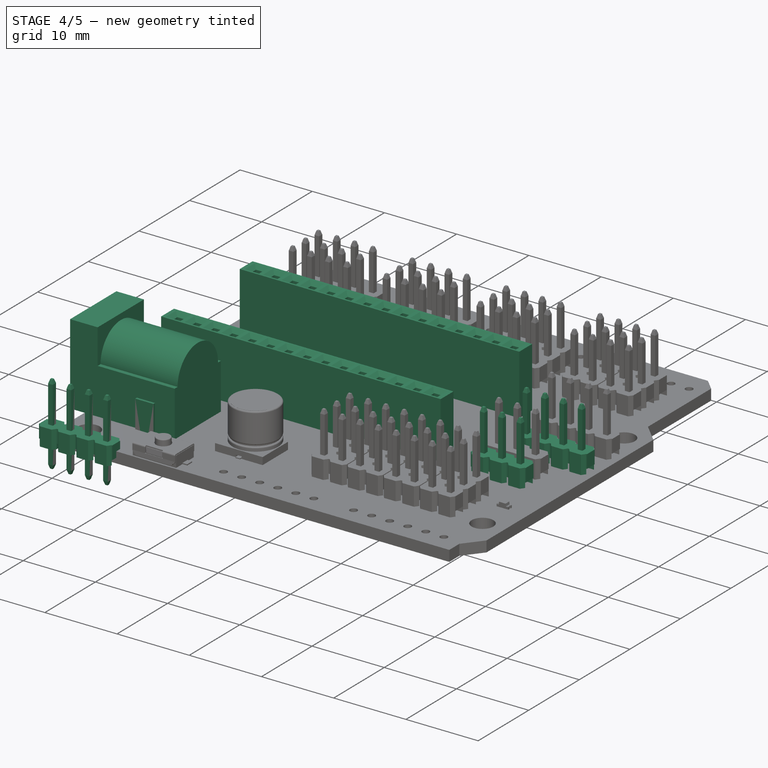
[diagram: stage 4 of 5 — iso view after this stage's code; geometry added in this stage tinted green]
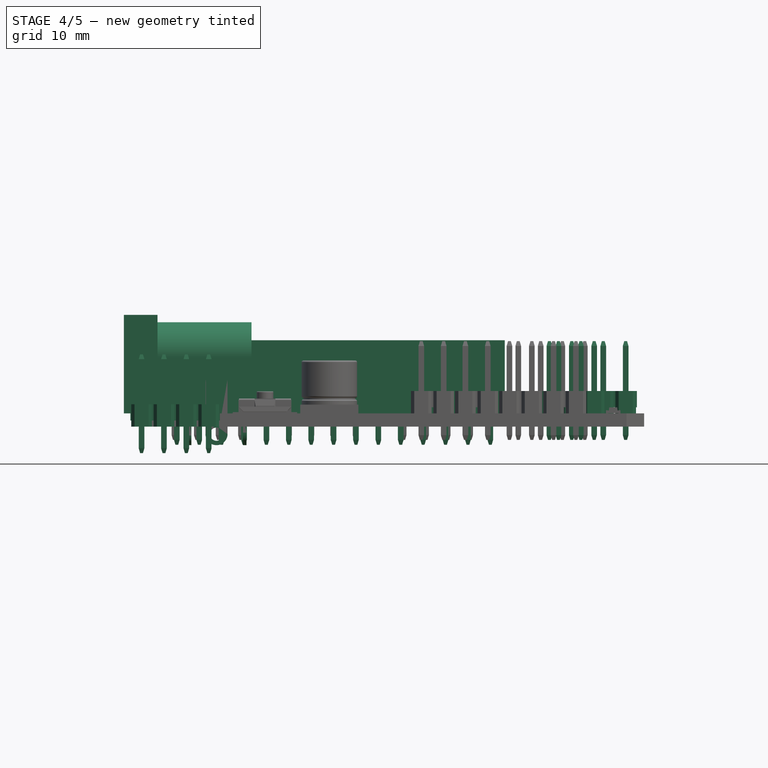
[diagram: stage 4 of 5 — front view after this stage's code; geometry added in this stage tinted green]
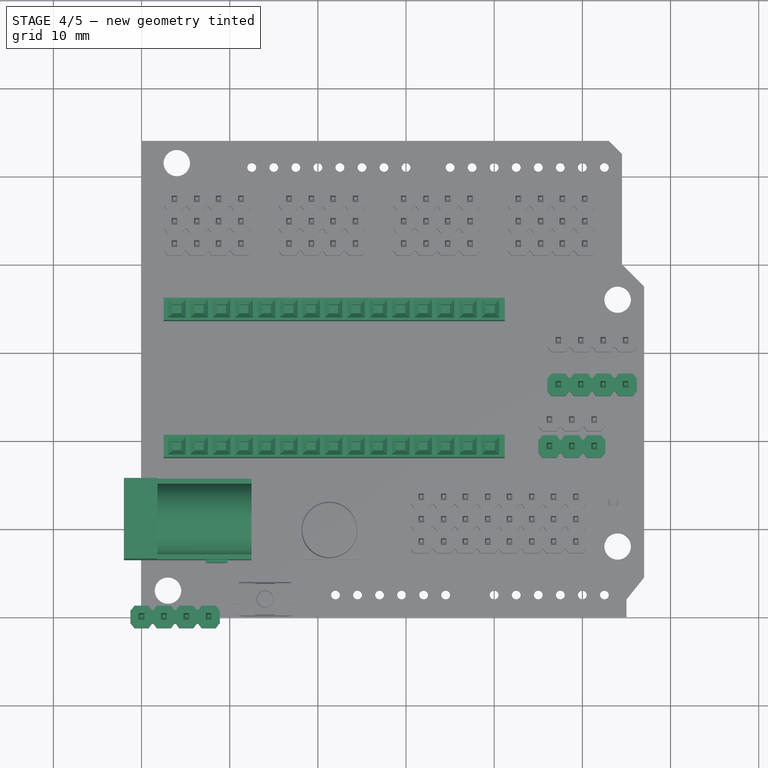
[diagram: stage 4 of 5 — top view after this stage's code; geometry added in this stage tinted green]
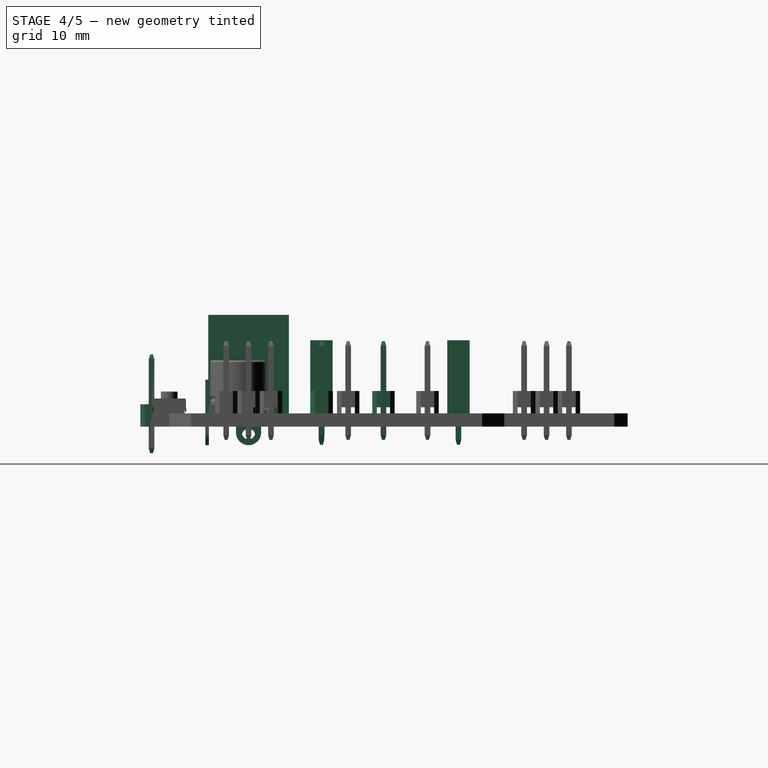
[diagram: stage 4 of 5 — right view after this stage's code; geometry added in this stage tinted green]
FEATURE [App::DocumentObjectGroup] Group  label="header-srcs"
  Group = -> [Pad001,Fusion001,Loft001,Pad003,Pad004,Cut,Array002]
FEATURE [Part::Feature] Cut002  label="1x15-female-body-src001"
  shape: bbox 38.7 x 2.54 x 8.3 mm, 141 faces (baked)
FEATURE [Part::Feature] Array002001  label="pin-array-src002"
  shape: bbox 36.2 x 0.64 x 3.546 mm, 150 faces, 15 solids (baked)
FEATURE [Part::Compound] Compound001  label="1x15-female-pin-header_1"
  Links = -> [Cut002,Array002001]
  Placement = pos=(4,19.27,1.5) rot=(0,0,1;0rad)
FEATURE [Part::FeaturePython] Clone  label="1x15-female-pin-header_2"  # Draft clone (typed FeaturePython)
  Objects = -> [Compound001]
  Placement = pos=(4,34.81,1.5) rot=(0,0,1;0rad)
  Scale = (1,1,1)
FEATURE [Sketcher::SketchObject] Sketch027  label="pin-base-sketch002"
  sketch-geometry (4):
    g0: LineSegment StartX=-0.32 StartY=0.32 StartZ=0 EndX=0.32 EndY=0.32 EndZ=0
    g1: LineSegment StartX=0.32 StartY=0.32 StartZ=0 EndX=0.32 EndY=-0.32 EndZ=0
    g2: LineSegment StartX=0.32 StartY=-0.32 StartZ=0 EndX=-0.32 EndY=-0.32 EndZ=0
    g3: LineSegment StartX=-0.32 StartY=-0.32 StartZ=0 EndX=-0.32 EndY=0.32 EndZ=0
  constraints (11):
    c: Coincident(g0,g1)
    c: Coincident(g1,g2)
    c: Coincident(g2,g3)
    c: Coincident(g3,g0)
    c: Horizontal(g0)
    c: Horizontal(g2)
    c: Vertical(g1)
    c: Vertical(g3)
    c: Symmetric(g0,g1,g-1)
    c: Equal(g0,g3)
    c: DistanceX(g0) = 0.64
FEATURE [PartDesign::Pad] Pad011  label="pin-base002"
  Length = 10.108
  Length2 = 100
  Midplane = true
  Sketch = -> Sketch027
  Type = 0
FEATURE [Sketcher::SketchObject] Sketch028  label="pin-end-bottom-base-sketch002"
  sketch-geometry (4):
    g0: LineSegment StartX=-0.32 StartY=0.32 StartZ=0 EndX=0.32 EndY=0.32 EndZ=0
    g1: LineSegment StartX=0.32 StartY=0.32 StartZ=0 EndX=0.32 EndY=-0.32 EndZ=0
    g2: LineSegment StartX=0.32 StartY=-0.32 StartZ=0 EndX=-0.32 EndY=-0.32 EndZ=0
    g3: LineSegment StartX=-0.32 StartY=-0.32 StartZ=0 EndX=-0.32 EndY=0.32 EndZ=0
  constraints (11):
    c: Coincident(g0,g1)
    c: Coincident(g1,g2)
    c: Coincident(g2,g3)
    c: Coincident(g3,g0)
    c: Horizontal(g0)
    c: Horizontal(g2)
    c: Vertical(g1)
    c: Vertical(g3)
    c: Symmetric(g0,g1,g-1)
    c: Equal(g0,g3)
    c: DistanceX(g0) = 0.64
FEATURE [Sketcher::SketchObject] Sketch029  label="pin-end-top-base-sketch002"
  Placement = pos=(0,0,0.546) rot=(0,0,1;0rad)
  sketch-geometry (4):
    g0: LineSegment StartX=-0.16 StartY=0.16 StartZ=0 EndX=0.16 EndY=0.16 EndZ=0
    g1: LineSegment StartX=0.16 StartY=0.16 StartZ=0 EndX=0.16 EndY=-0.16 EndZ=0
    g2: LineSegment StartX=0.16 StartY=-0.16 StartZ=0 EndX=-0.16 EndY=-0.16 EndZ=0
    g3: LineSegment StartX=-0.16 StartY=-0.16 StartZ=0 EndX=-0.16 EndY=0.16 EndZ=0
  constraints (11):
    c: Coincident(g0,g1)
    c: Coincident(g1,g2)
    c: Coincident(g2,g3)
    c: Coincident(g3,g0)
    c: Horizontal(g0)
    c: Horizontal(g2)
    c: Vertical(g1)
    c: Vertical(g3)
    c: Symmetric(g0,g1,g-1)
    c: Equal(g0,g3)
    c: DistanceX(g0) = 0.32
FEATURE [Part::Loft] Loft003  label="pin-end002"
  Closed = false
  Placement = pos=(0,0,5.054) rot=(0,0,1;0rad)
  Ruled = false
  Sections = -> [Sketch028,Sketch029]
  Solid = true
FEATURE [Part::Mirroring] Part__Mirroring006  label="pin-end (Mirror #1)001"
  Base = (0,0,0)
  Normal = (0,0,1)
  Source = -> Loft003
FEATURE [Part::MultiFuse] Fusion003009  label="pin003"
  Placement = pos=(0,0,2.6) rot=(0,0,1;0rad)
  Shapes = -> [Pad011,Loft003,Part__Mirroring006]
FEATURE [Sketcher::SketchObject] Sketch030  label="pin-support-main-sketch001"
  sketch-geometry (16):
    g0: LineSegment [constr] StartX=-1.27 StartY=1.27 StartZ=0 EndX=1.27 EndY=1.27 EndZ=0
    g1: LineSegment [constr] StartX=1.27 StartY=1.27 StartZ=0 EndX=1.27 EndY=-1.27 EndZ=0
    g2: LineSegment [constr] StartX=1.27 StartY=-1.27 StartZ=0 EndX=-1.27 EndY=-1.27 EndZ=0
    g3: LineSegment [constr] StartX=-1.27 StartY=-1.27 StartZ=0 EndX=-1.27 EndY=1.27 EndZ=0
    g4: LineSegment StartX=-1.27 StartY=0.77 StartZ=0 EndX=-1.17 EndY=0.77 EndZ=0
    g5: LineSegment StartX=-1.17 StartY=0.77 StartZ=0 EndX=-0.8 EndY=1.27 EndZ=0
    g6: LineSegment StartX=-0.8 StartY=1.27 StartZ=0 EndX=0.8 EndY=1.27 EndZ=0
    g7: LineSegment StartX=0.8 StartY=1.27 StartZ=0 EndX=1.17 EndY=0.77 EndZ=0
    g8: LineSegment StartX=1.17 StartY=0.77 StartZ=0 EndX=1.27 EndY=0.77 EndZ=0
    g9: LineSegment StartX=-1.27 StartY=-0.77 StartZ=0 EndX=-1.17 EndY=-0.77 EndZ=0
    g10: LineSegment StartX=-1.17 StartY=-0.77 StartZ=0 EndX=-0.8 EndY=-1.27 EndZ=0
    g11: LineSegment StartX=-0.8 StartY=-1.27 StartZ=0 EndX=0.8 EndY=-1.27 EndZ=0
    g12: LineSegment StartX=0.8 StartY=-1.27 StartZ=0 EndX=1.17 EndY=-0.77 EndZ=0
    g13: LineSegment StartX=1.17 StartY=-0.77 StartZ=0 EndX=1.27 EndY=-0.77 EndZ=0
    g14: LineSegment StartX=-1.27 StartY=0.77 StartZ=0 EndX=-1.27 EndY=-0.77 EndZ=0
    g15: LineSegment StartX=1.27 StartY=0.77 StartZ=0 EndX=1.27 EndY=-0.77 EndZ=0
  constraints (43):
    c: Coincident(g0,g1)
    c: Coincident(g1,g2)
    c: Coincident(g2,g3)
    c: Coincident(g3,g0)
    c: Horizontal(g0)
    c: Horizontal(g2)
    c: Vertical(g1)
    c: Vertical(g3)
    c: Symmetric(g0,g1,g-1)
    c: Equal(g3,g0)
    c: DistanceX(g0) = 2.54
    c: Coincident(g4,g5)
    c: Coincident(g5,g6)
    c: Coincident(g6,g7)
    c: Coincident(g7,g8)
    c: Horizontal(g8)
    c: Horizontal(g6)
    c: DistanceX(g6) = 1.6
    c: Symmetric(g6,g5,g-2)
    c: Symmetric(g4,g7,g-2)
    c: Symmetric(g4,g8,g-2)
    c: PointOnObject(g4,g3)
    c: PointOnObject(g5,g0)
    c: DistanceX(g4) = 0.1
    c: DistanceY(g4,g5) = 0.5
    c: Coincident(g9,g10)
    c: Coincident(g10,g11)
    c: Coincident(g11,g12)
    c: Coincident(g12,g13)
    c: Horizontal(g11)
    c: Horizontal(g13)
    c: Symmetric(g10,g11,g-2)
    c: Symmetric(g9,g12,g-2)
    c: Symmetric(g9,g13,g-2)
    c: Symmetric(g9,g4,g-1)
    c: Symmetric(g5,g10,g-1)
    c: Symmetric(g9,g4,g-1)
    c: Vertical(g14)
    c: Coincident(g14,g9)
    c: Coincident(g14,g4)
    c: Vertical(g15)
    c: Coincident(g15,g8)
    c: Coincident(g15,g13)
FEATURE [PartDesign::Pad] Pad012  label="pin-support-main001"
  Length = 2.54
  Length2 = 100
  Sketch = -> Sketch030
  Type = 0
FEATURE [Sketcher::SketchObject] Sketch031  label="pin-support-cutout-1-sketch"
  ExternalGeometry = -> [Pad012]
  Placement = pos=(0,-0.77,0) rot=(1,0,0;1.5708rad)
  Support = -> Pad012 [Face8]
  sketch-geometry (12):
    g0: LineSegment StartX=1.17 StartY=0.7 StartZ=0 EndX=1.27 EndY=0.7 EndZ=0
    g1: LineSegment [constr] StartX=1.27 StartY=0.7 StartZ=0 EndX=1.27 EndY=0 EndZ=0
    g2: LineSegment [constr] StartX=1.27 StartY=0 StartZ=0 EndX=1.17 EndY=0 EndZ=0
    g3: LineSegment StartX=1.17 StartY=0 StartZ=0 EndX=1.17 EndY=0.7 EndZ=0
    g4: LineSegment StartX=1.17 StartY=0 StartZ=0 EndX=1.17 EndY=-0.1 EndZ=0
    g5: LineSegment StartX=1.17 StartY=-0.1 StartZ=0 EndX=1.37 EndY=-0.1 EndZ=0
    g6: LineSegment StartX=1.37 StartY=-0.1 StartZ=0 EndX=1.37 EndY=0.7 EndZ=0
    g7: LineSegment StartX=1.37 StartY=0.7 StartZ=0 EndX=1.27 EndY=0.7 EndZ=0
    g8: LineSegment StartX=-1.37 StartY=0.7 StartZ=0 EndX=-1.17 EndY=0.7 EndZ=0
    g9: LineSegment StartX=-1.17 StartY=0.7 StartZ=0 EndX=-1.17 EndY=-0.1 EndZ=0
    g10: LineSegment StartX=-1.17 StartY=-0.1 StartZ=0 EndX=-1.37 EndY=-0.1 EndZ=0
    g11: LineSegment StartX=-1.37 StartY=-0.1 StartZ=0 EndX=-1.37 EndY=0.7 EndZ=0
  constraints (33):
    c: Coincident(g0,g1)
    c: Coincident(g1,g2)
    c: Coincident(g2,g3)
    c: Coincident(g3,g0)
    c: Horizontal(g0)
    c: Horizontal(g2)
    c: Vertical(g1)
    c: PointOnObject(g0,g-3)
    c: Coincident(g2,g-3)
    c: Coincident(g1,g-4)
    c: Coincident(g4,g5)
    c: Coincident(g5,g6)
    c: Coincident(g6,g7)
    c: Horizontal(g5)
    c: Horizontal(g7)
    c: Vertical(g6)
    c: Vertical(g4)
    c: Coincident(g2,g4)
    c: Coincident(g7,g0)
    c: DistanceY(g2,g0) = 0.7
    c: Equal(g4,g7)
    c: DistanceX(g7) = -0.1
    c: Coincident(g8,g9)
    c: Coincident(g9,g10)
    c: Coincident(g10,g11)
    c: Coincident(g11,g8)
    c: Horizontal(g8)
    c: Horizontal(g10)
    c: Vertical(g9)
    c: Vertical(g11)
    c: Symmetric(g8,g0,g-2)
    c: Symmetric(g8,g6,g-2)
    c: Symmetric(g9,g4,g-2)
FEATURE [PartDesign::Pocket] Pocket001005  label="pin-support-cutout-003"
  Length = 5
  Sketch = -> Sketch031
  Type = 1
FEATURE [App::DocumentObjectGroup] Group011  label="pin-support-src001"
  Group = -> [Pad012,Pocket001005,Pocket001006,Array002002]
FEATURE [Part::FeaturePython] Array002003  # Draft array (typed FeaturePython)
  Angle = 360
  ArrayType = 0
  Axis = (0,0,1)
  Base = -> Fusion003009
  Center = (0,0,0)
  IntervalX = (2.54,0,0)
  IntervalY = (0,1,0)
  IntervalZ = (0,0,1)
  NumberPolar = 1
  NumberX = 3
  NumberY = 1
  NumberZ = 1
FEATURE [Sketcher::SketchObject] Sketch033  label="pin-base-sketch003"
  sketch-geometry (4):
    g0: LineSegment StartX=-0.32 StartY=0.32 StartZ=0 EndX=0.32 EndY=0.32 EndZ=0
    g1: LineSegment StartX=0.32 StartY=0.32 StartZ=0 EndX=0.32 EndY=-0.32 EndZ=0
    g2: LineSegment StartX=0.32 StartY=-0.32 StartZ=0 EndX=-0.32 EndY=-0.32 EndZ=0
    g3: LineSegment StartX=-0.32 StartY=-0.32 StartZ=0 EndX=-0.32 EndY=0.32 EndZ=0
  constraints (11):
    c: Coincident(g0,g1)
    c: Coincident(g1,g2)
    c: Coincident(g2,g3)
    c: Coincident(g3,g0)
    c: Horizontal(g0)
    c: Horizontal(g2)
    c: Vertical(g1)
    c: Vertical(g3)
    c: Symmetric(g0,g1,g-1)
    c: Equal(g0,g3)
    c: DistanceX(g0) = 0.64
FEATURE [PartDesign::Pad] Pad013  label="pin-base003"
  Length = 10.108
  Length2 = 100
  Midplane = true
  Sketch = -> Sketch033
  Type = 0
FEATURE [Sketcher::SketchObject] Sketch034  label="pin-end-bottom-base-sketch003"
  sketch-geometry (4):
    g0: LineSegment StartX=-0.32 StartY=0.32 StartZ=0 EndX=0.32 EndY=0.32 EndZ=0
    g1: LineSegment StartX=0.32 StartY=0.32 StartZ=0 EndX=0.32 EndY=-0.32 EndZ=0
    g2: LineSegment StartX=0.32 StartY=-0.32 StartZ=0 EndX=-0.32 EndY=-0.32 EndZ=0
    g3: LineSegment StartX=-0.32 StartY=-0.32 StartZ=0 EndX=-0.32 EndY=0.32 EndZ=0
  constraints (11):
    c: Coincident(g0,g1)
    c: Coincident(g1,g2)
    c: Coincident(g2,g3)
    c: Coincident(g3,g0)
    c: Horizontal(g0)
    c: Horizontal(g2)
    c: Vertical(g1)
    c: Vertical(g3)
    c: Symmetric(g0,g1,g-1)
    c: Equal(g0,g3)
    c: DistanceX(g0) = 0.64
FEATURE [Sketcher::SketchObject] Sketch035  label="pin-end-top-base-sketch003"
  Placement = pos=(0,0,0.546) rot=(0,0,1;0rad)
  sketch-geometry (4):
    g0: LineSegment StartX=-0.16 StartY=0.16 StartZ=0 EndX=0.16 EndY=0.16 EndZ=0
    g1: LineSegment StartX=0.16 StartY=0.16 StartZ=0 EndX=0.16 EndY=-0.16 EndZ=0
    g2: LineSegment StartX=0.16 StartY=-0.16 StartZ=0 EndX=-0.16 EndY=-0.16 EndZ=0
    g3: LineSegment StartX=-0.16 StartY=-0.16 StartZ=0 EndX=-0.16 EndY=0.16 EndZ=0
  constraints (11):
    c: Coincident(g0,g1)
    c: Coincident(g1,g2)
    c: Coincident(g2,g3)
    c: Coincident(g3,g0)
    c: Horizontal(g0)
    c: Horizontal(g2)
    c: Vertical(g1)
    c: Vertical(g3)
    c: Symmetric(g0,g1,g-1)
    c: Equal(g0,g3)
    c: DistanceX(g0) = 0.32
FEATURE [Part::Loft] Loft004  label="pin-end003"
  Closed = false
  Placement = pos=(0,0,5.054) rot=(0,0,1;0rad)
  Ruled = false
  Sections = -> [Sketch034,Sketch035]
  Solid = true
FEATURE [Part::Mirroring] Part__Mirroring007  label="pin-end (Mirror #1)002"
  Base = (0,0,0)
  Normal = (0,0,1)
  Source = -> Loft004
FEATURE [Part::MultiFuse] Fusion003010  label="pin004"
  Placement = pos=(0,0,2.6) rot=(0,0,1;0rad)
  Shapes = -> [Pad013,Loft004,Part__Mirroring007]
FEATURE [Sketcher::SketchObject] Sketch036  label="pin-support-main-sketch002"
  sketch-geometry (16):
    g0: LineSegment [constr] StartX=-1.27 StartY=1.27 StartZ=0 EndX=1.27 EndY=1.27 EndZ=0
    g1: LineSegment [constr] StartX=1.27 StartY=1.27 StartZ=0 EndX=1.27 EndY=-1.27 EndZ=0
    g2: LineSegment [constr] StartX=1.27 StartY=-1.27 StartZ=0 EndX=-1.27 EndY=-1.27 EndZ=0
    g3: LineSegment [constr] StartX=-1.27 StartY=-1.27 StartZ=0 EndX=-1.27 EndY=1.27 EndZ=0
    g4: LineSegment StartX=-1.27 StartY=0.77 StartZ=0 EndX=-1.17 EndY=0.77 EndZ=0
    g5: LineSegment StartX=-1.17 StartY=0.77 StartZ=0 EndX=-0.8 EndY=1.27 EndZ=0
    g6: LineSegment StartX=-0.8 StartY=1.27 StartZ=0 EndX=0.8 EndY=1.27 EndZ=0
    g7: LineSegment StartX=0.8 StartY=1.27 StartZ=0 EndX=1.17 EndY=0.77 EndZ=0
    g8: LineSegment StartX=1.17 StartY=0.77 StartZ=0 EndX=1.27 EndY=0.77 EndZ=0
    g9: LineSegment StartX=-1.27 StartY=-0.77 StartZ=0 EndX=-1.17 EndY=-0.77 EndZ=0
    g10: LineSegment StartX=-1.17 StartY=-0.77 StartZ=0 EndX=-0.8 EndY=-1.27 EndZ=0
    g11: LineSegment StartX=-0.8 StartY=-1.27 StartZ=0 EndX=0.8 EndY=-1.27 EndZ=0
    g12: LineSegment StartX=0.8 StartY=-1.27 StartZ=0 EndX=1.17 EndY=-0.77 EndZ=0
    g13: LineSegment StartX=1.17 StartY=-0.77 StartZ=0 EndX=1.27 EndY=-0.77 EndZ=0
    g14: LineSegment StartX=-1.27 StartY=0.77 StartZ=0 EndX=-1.27 EndY=-0.77 EndZ=0
    g15: LineSegment StartX=1.27 StartY=0.77 StartZ=0 EndX=1.27 EndY=-0.77 EndZ=0
  constraints (43):
    c: Coincident(g0,g1)
    c: Coincident(g1,g2)
    c: Coincident(g2,g3)
    c: Coincident(g3,g0)
    c: Horizontal(g0)
    c: Horizontal(g2)
    c: Vertical(g1)
    c: Vertical(g3)
    c: Symmetric(g0,g1,g-1)
    c: Equal(g3,g0)
    c: DistanceX(g0) = 2.54
    c: Coincident(g4,g5)
    c: Coincident(g5,g6)
    c: Coincident(g6,g7)
    c: Coincident(g7,g8)
    c: Horizontal(g8)
    c: Horizontal(g6)
    c: DistanceX(g6) = 1.6
    c: Symmetric(g6,g5,g-2)
    c: Symmetric(g4,g7,g-2)
    c: Symmetric(g4,g8,g-2)
    c: PointOnObject(g4,g3)
    c: PointOnObject(g5,g0)
    c: DistanceX(g4) = 0.1
    c: DistanceY(g4,g5) = 0.5
    c: Coincident(g9,g10)
    c: Coincident(g10,g11)
    c: Coincident(g11,g12)
    c: Coincident(g12,g13)
    c: Horizontal(g11)
    c: Horizontal(g13)
    c: Symmetric(g10,g11,g-2)
    c: Symmetric(g9,g12,g-2)
    c: Symmetric(g9,g13,g-2)
    c: Symmetric(g9,g4,g-1)
    c: Symmetric(g5,g10,g-1)
    c: Symmetric(g9,g4,g-1)
    c: Vertical(g14)
    c: Coincident(g14,g9)
    c: Coincident(g14,g4)
    c: Vertical(g15)
    c: Coincident(g15,g8)
    c: Coincident(g15,g13)
FEATURE [PartDesign::Pad] Pad014  label="pin-support-main002"
  Length = 2.54
  Length2 = 100
  Sketch = -> Sketch036
  Type = 0
FEATURE [Sketcher::SketchObject] Sketch037  label="pin-support-cutout-1-sketch001"
  ExternalGeometry = -> [Pad014]
  Placement = pos=(0,-0.77,0) rot=(1,0,0;1.5708rad)
  Support = -> Pad014 [Face8]
  sketch-geometry (12):
    g0: LineSegment StartX=1.17 StartY=0.7 StartZ=0 EndX=1.27 EndY=0.7 EndZ=0
    g1: LineSegment [constr] StartX=1.27 StartY=0.7 StartZ=0 EndX=1.27 EndY=0 EndZ=0
    g2: LineSegment [constr] StartX=1.27 StartY=0 StartZ=0 EndX=1.17 EndY=0 EndZ=0
    g3: LineSegment StartX=1.17 StartY=0 StartZ=0 EndX=1.17 EndY=0.7 EndZ=0
    g4: LineSegment StartX=1.17 StartY=0 StartZ=0 EndX=1.17 EndY=-0.1 EndZ=0
    g5: LineSegment StartX=1.17 StartY=-0.1 StartZ=0 EndX=1.37 EndY=-0.1 EndZ=0
    g6: LineSegment StartX=1.37 StartY=-0.1 StartZ=0 EndX=1.37 EndY=0.7 EndZ=0
    g7: LineSegment StartX=1.37 StartY=0.7 StartZ=0 EndX=1.27 EndY=0.7 EndZ=0
    g8: LineSegment StartX=-1.37 StartY=0.7 StartZ=0 EndX=-1.17 EndY=0.7 EndZ=0
    g9: LineSegment StartX=-1.17 StartY=0.7 StartZ=0 EndX=-1.17 EndY=-0.1 EndZ=0
    g10: LineSegment StartX=-1.17 StartY=-0.1 StartZ=0 EndX=-1.37 EndY=-0.1 EndZ=0
    g11: LineSegment StartX=-1.37 StartY=-0.1 StartZ=0 EndX=-1.37 EndY=0.7 EndZ=0
  constraints (33):
    c: Coincident(g0,g1)
    c: Coincident(g1,g2)
    c: Coincident(g2,g3)
    c: Coincident(g3,g0)
    c: Horizontal(g0)
    c: Horizontal(g2)
    c: Vertical(g1)
    c: PointOnObject(g0,g-3)
    c: Coincident(g2,g-3)
    c: Coincident(g1,g-4)
    c: Coincident(g4,g5)
    c: Coincident(g5,g6)
    c: Coincident(g6,g7)
    c: Horizontal(g5)
    c: Horizontal(g7)
    c: Vertical(g6)
    c: Vertical(g4)
    c: Coincident(g2,g4)
    c: Coincident(g7,g0)
    c: DistanceY(g2,g0) = 0.7
    c: Equal(g4,g7)
    c: DistanceX(g7) = -0.1
    c: Coincident(g8,g9)
    c: Coincident(g9,g10)
    c: Coincident(g10,g11)
    c: Coincident(g11,g8)
    c: Horizontal(g8)
    c: Horizontal(g10)
    c: Vertical(g9)
    c: Vertical(g11)
    c: Symmetric(g8,g0,g-2)
    c: Symmetric(g8,g6,g-2)
    c: Symmetric(g9,g4,g-2)
FEATURE [PartDesign::Pocket] Pocket001007  label="pin-support-cutout-005"
  Length = 5
  Sketch = -> Sketch037
  Type = 1
FEATURE [Sketcher::SketchObject] Sketch038  label="pin-support-cutout-2-sketch002"
  Placement = pos=(0,0,0) rot=(1,0,0;3.14159rad)
  Support = -> Pocket001007 [Face16]
  sketch-geometry (4):
    g0: LineSegment StartX=-1.5 StartY=0.75 StartZ=0 EndX=1.5 EndY=0.75 EndZ=0
    g1: LineSegment StartX=1.5 StartY=0.75 StartZ=0 EndX=1.5 EndY=-0.75 EndZ=0
    g2: LineSegment StartX=1.5 StartY=-0.75 StartZ=0 EndX=-1.5 EndY=-0.75 EndZ=0
    g3: LineSegment StartX=-1.5 StartY=-0.75 StartZ=0 EndX=-1.5 EndY=0.75 EndZ=0
  constraints (11):
    c: Coincident(g0,g1)
    c: Coincident(g1,g2)
    c: Coincident(g2,g3)
    c: Coincident(g3,g0)
    c: Horizontal(g0)
    c: Horizontal(g2)
    c: Vertical(g1)
    c: Vertical(g3)
    c: Symmetric(g0,g1,g-1)
    c: DistanceY(g3) = 1.5
    c: DistanceX(g0) = 3
FEATURE [PartDesign::Pocket] Pocket001008  label="pin-support-cutout-006"
  Length = 0.7
  Sketch = -> Sketch038
  Type = 0
FEATURE [Part::FeaturePython] Array002005  # Draft array (typed FeaturePython)
  Angle = 360
  ArrayType = 0
  Axis = (0,0,1)
  Base = -> Pocket001008
  Center = (0,0,0)
  IntervalX = (2.54,0,0)
  IntervalY = (0,1,0)
  IntervalZ = (0,0,1)
  NumberPolar = 1
  NumberX = 4
  NumberY = 1
  NumberZ = 1
FEATURE [App::DocumentObjectGroup] Group013  label="pin-support-src002"
  Group = -> [Pad014,Pocket001007,Pocket001008,Array002005]
FEATURE [Part::FeaturePython] Array002006  # Draft array (typed FeaturePython)
  Angle = 360
  ArrayType = 0
  Axis = (0,0,1)
  Base = -> Fusion003010
  Center = (0,0,0)
  IntervalX = (2.54,0,0)
  IntervalY = (0,1,0)
  IntervalZ = (0,0,1)
  NumberPolar = 1
  NumberX = 4
  NumberY = 1
  NumberZ = 1
FEATURE [Part::FeaturePython] Clone024  label="Clone of led-body"  # Draft clone (typed FeaturePython)
  Objects = -> [Clone019]
  Placement = pos=(8.646e-09,-1.9082e-08,0.0297664) rot=(0,0,1;0rad)
  Scale = (0.41,0.41,0.41)
FEATURE [Part::FeaturePython] Clone025  label="Clone of led-inner"  # Draft clone (typed FeaturePython)
  Objects = -> [Clone020]
  Placement = pos=(-0.0800286,-0.0744368,0.329766) rot=(0,0,1;0rad)
  Scale = (0.41,0.41,0.41)
FEATURE [Part::FeaturePython] Clone026  label="Clone of led-top"  # Draft clone (typed FeaturePython)
  Objects = -> [Clone021]
  Placement = pos=(4.323e-09,-5.968e-09,0.329766) rot=(1,0,0;1.5708rad)
  Scale = (0.41,0.41,0.41)
FEATURE [Part::FeaturePython] Clone027  label="Clone of led-side (Mirror #1)"  # Draft clone (typed FeaturePython)
  Objects = -> [Part__Mirroring008]
  Scale = (0.41,0.41,0.41)
FEATURE [Part::FeaturePython] Clone028  label="Clone of led-side"  # Draft clone (typed FeaturePython)
  Objects = -> [Clone022]
  Placement = pos=(-0.825,-7.16e-09,0.00476642) rot=(1,0,0;1.5708rad)
  Scale = (0.41,0.41,0.41)
FEATURE [Part::FeaturePython] Clone029  label="Clone of mark"  # Draft clone (typed FeaturePython)
  Objects = -> [Clone023]
  Placement = pos=(-1.00462,-0.31775,0.209312) rot=(0,0,1;0rad)
  Scale = (0.41,0.41,0.41)
FEATURE [App::DocumentObjectGroup] Group023  label="nano_expansion_schield_src"
  Group = -> [Fusion,Compound001,Clone,Group001,Array,Group004,Compound002,Group005,Compound003,Compound004,Clone016,Compound005,Clone017,Array002010,Group015,Compound006,Group022,Cut003]
FEATURE [Part::Compound] Compound007  label="nano_expansion_schield_main"
  Links = -> [Cut003,Compound006,Array002010,Clone017,Compound005,Clone016,Compound004,Compound003,Compound002,Array,Clone,Compound001,Fusion]
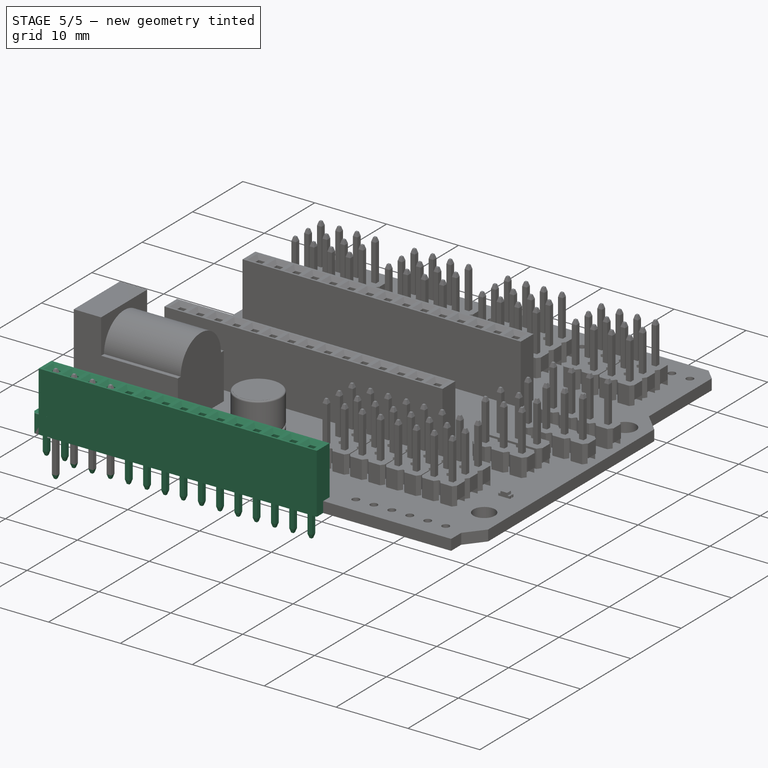
[diagram: stage 5 of 5 — iso view after this stage's code; geometry added in this stage tinted green]
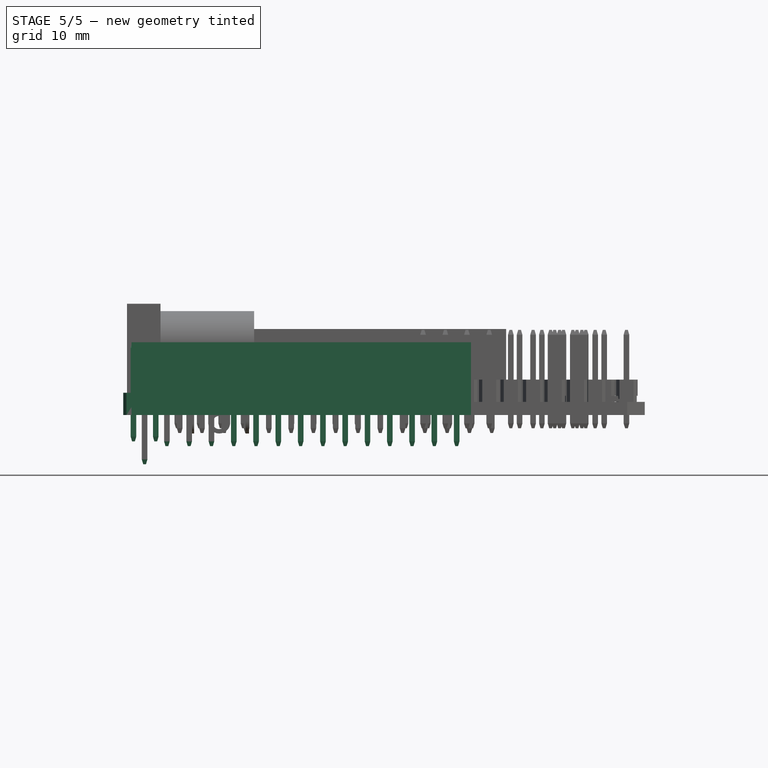
[diagram: stage 5 of 5 — front view after this stage's code; geometry added in this stage tinted green]
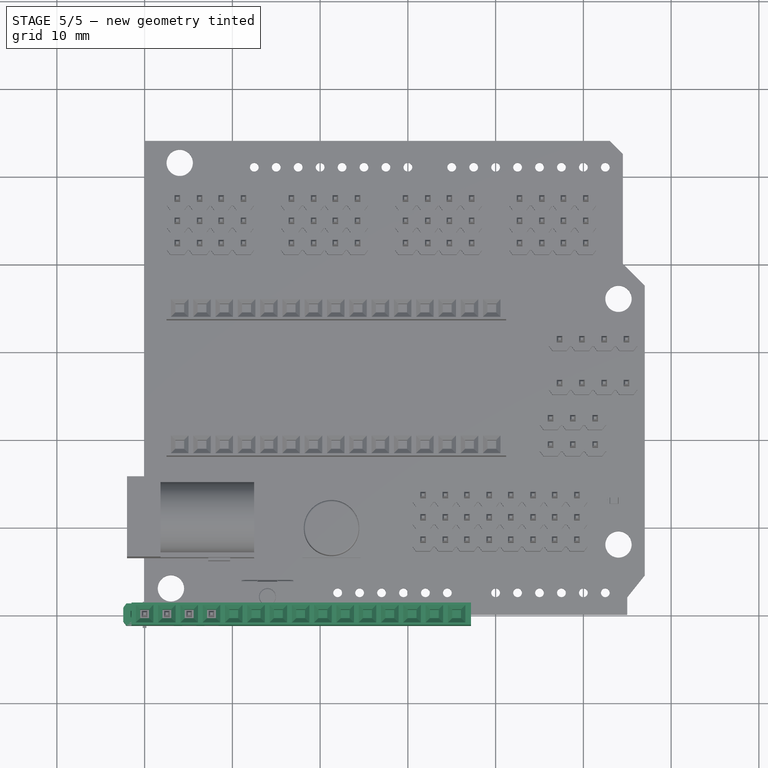
[diagram: stage 5 of 5 — top view after this stage's code; geometry added in this stage tinted green]
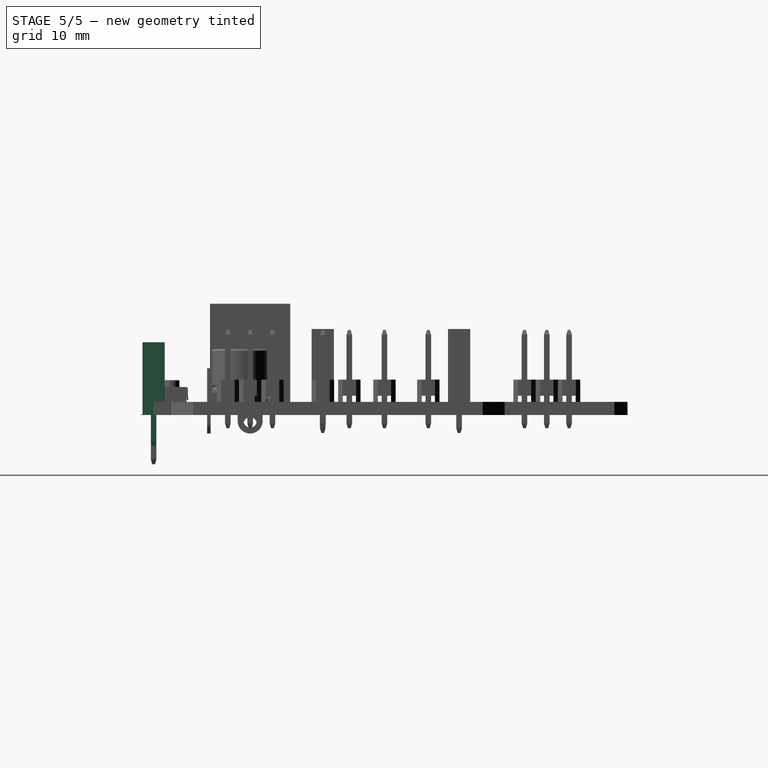
[diagram: stage 5 of 5 — right view after this stage's code; geometry added in this stage tinted green]
FEATURE [Part::Feature] Fusion  label="jack_DC_2.1mm_PCB-final"
  Placement = pos=(-2,11,1.5) rot=(0.57735,-0.57735,-0.57735;2.0944rad)
  shape: bbox 14.48 x 9.472 x 14.78 mm, 34 faces (baked)
FEATURE [Sketcher::SketchObject] Sketch001  label="main-body-sketch"
  sketch-geometry (4):
    g0: LineSegment StartX=-1.5 StartY=1.27 StartZ=0 EndX=37.2 EndY=1.27 EndZ=0
    g1: LineSegment StartX=37.2 StartY=1.27 StartZ=0 EndX=37.2 EndY=-1.27 EndZ=0
    g2: LineSegment StartX=37.2 StartY=-1.27 StartZ=0 EndX=-1.5 EndY=-1.27 EndZ=0
    g3: LineSegment StartX=-1.5 StartY=-1.27 StartZ=0 EndX=-1.5 EndY=1.27 EndZ=0
  constraints (12):
    c: Coincident(g0,g1)
    c: Coincident(g1,g2)
    c: Coincident(g2,g3)
    c: Coincident(g3,g0)
    c: Horizontal(g0)
    c: Horizontal(g2)
    c: Vertical(g1)
    c: Vertical(g3)
    c: Symmetric(g0,g2,g-1)
    c: DistanceX(g0) = 38.7
    c: DistanceY(g1) = -2.54
    c: DistanceX(g-1,g0) = -1.5
FEATURE [PartDesign::Pad] Pad001  label="main-body"
  Length = 8.3
  Length2 = 100
  Sketch = -> Sketch001
  Type = 0
FEATURE [Sketcher::SketchObject] Sketch002  label="pin-base-sketch"
  Placement = pos=(0,0,-3) rot=(0,0,1;0rad)
  sketch-geometry (4):
    g0: LineSegment StartX=-0.32 StartY=0.32 StartZ=0 EndX=0.32 EndY=0.32 EndZ=0
    g1: LineSegment StartX=0.32 StartY=0.32 StartZ=0 EndX=0.32 EndY=-0.32 EndZ=0
    g2: LineSegment StartX=0.32 StartY=-0.32 StartZ=0 EndX=-0.32 EndY=-0.32 EndZ=0
    g3: LineSegment StartX=-0.32 StartY=-0.32 StartZ=0 EndX=-0.32 EndY=0.32 EndZ=0
  constraints (11):
    c: Coincident(g0,g1)
    c: Coincident(g1,g2)
    c: Coincident(g2,g3)
    c: Coincident(g3,g0)
    c: Horizontal(g0)
    c: Horizontal(g2)
    c: Vertical(g1)
    c: Vertical(g3)
    c: Symmetric(g0,g1,g-1)
    c: Equal(g0,g3)
    c: DistanceX(g0) = 0.64
FEATURE [PartDesign::Pad] Pad002  label="pin-base"
  Length = 3
  Length2 = 100
  Placement = pos=(0,0,-3) rot=(0,0,1;0rad)
  Sketch = -> Sketch002
  Type = 0
FEATURE [Sketcher::SketchObject] Sketch003  label="pin-end-top-base-sketch"
  Placement = pos=(0,0,0.546) rot=(0,0,1;0rad)
  sketch-geometry (4):
    g0: LineSegment StartX=-0.16 StartY=0.16 StartZ=0 EndX=0.16 EndY=0.16 EndZ=0
    g1: LineSegment StartX=0.16 StartY=0.16 StartZ=0 EndX=0.16 EndY=-0.16 EndZ=0
    g2: LineSegment StartX=0.16 StartY=-0.16 StartZ=0 EndX=-0.16 EndY=-0.16 EndZ=0
    g3: LineSegment StartX=-0.16 StartY=-0.16 StartZ=0 EndX=-0.16 EndY=0.16 EndZ=0
  constraints (11):
    c: Coincident(g0,g1)
    c: Coincident(g1,g2)
    c: Coincident(g2,g3)
    c: Coincident(g3,g0)
    c: Horizontal(g0)
    c: Horizontal(g2)
    c: Vertical(g1)
    c: Vertical(g3)
    c: Symmetric(g0,g1,g-1)
    c: Equal(g0,g3)
    c: DistanceX(g0) = 0.32
FEATURE [Sketcher::SketchObject] Sketch004  label="pin-end-bottom-base-sketch"
  sketch-geometry (4):
    g0: LineSegment StartX=-0.32 StartY=0.32 StartZ=0 EndX=0.32 EndY=0.32 EndZ=0
    g1: LineSegment StartX=0.32 StartY=0.32 StartZ=0 EndX=0.32 EndY=-0.32 EndZ=0
    g2: LineSegment StartX=0.32 StartY=-0.32 StartZ=0 EndX=-0.32 EndY=-0.32 EndZ=0
    g3: LineSegment StartX=-0.32 StartY=-0.32 StartZ=0 EndX=-0.32 EndY=0.32 EndZ=0
  constraints (11):
    c: Coincident(g0,g1)
    c: Coincident(g1,g2)
    c: Coincident(g2,g3)
    c: Coincident(g3,g0)
    c: Horizontal(g0)
    c: Horizontal(g2)
    c: Vertical(g1)
    c: Vertical(g3)
    c: Symmetric(g0,g1,g-1)
    c: Equal(g0,g3)
    c: DistanceX(g0) = 0.64
FEATURE [Part::Loft] Loft  label="pin-end"
  Closed = false
  Placement = pos=(0,0,-3) rot=(0,1,0;3.14159rad)
  Ruled = false
  Sections = -> [Sketch004,Sketch003]
  Solid = true
FEATURE [Part::MultiFuse] Fusion001  label="pin-bottom"
  Shapes = -> [Pad002,Loft]
FEATURE [Sketcher::SketchObject] Sketch005  label="female-hole-small-section-sketch"
  sketch-geometry (4):
    g0: LineSegment StartX=-0.5 StartY=0.5 StartZ=0 EndX=0.5 EndY=0.5 EndZ=0
    g1: LineSegment StartX=0.5 StartY=0.5 StartZ=0 EndX=0.5 EndY=-0.5 EndZ=0
    g2: LineSegment StartX=0.5 StartY=-0.5 StartZ=0 EndX=-0.5 EndY=-0.5 EndZ=0
    g3: LineSegment StartX=-0.5 StartY=-0.5 StartZ=0 EndX=-0.5 EndY=0.5 EndZ=0
  constraints (11):
    c: Coincident(g0,g1)
    c: Coincident(g1,g2)
    c: Coincident(g2,g3)
    c: Coincident(g3,g0)
    c: Horizontal(g0)
    c: Horizontal(g2)
    c: Vertical(g1)
    c: Vertical(g3)
    c: Symmetric(g0,g1,g-1)
    c: Equal(g3,g0)
    c: DistanceX(g0) = 1
FEATURE [Sketcher::SketchObject] Sketch006  label="female-hole-big-section-sketch"
  Placement = pos=(0,0,0.5) rot=(0,0,1;0rad)
  sketch-geometry (4):
    g0: LineSegment StartX=-1 StartY=1 StartZ=0 EndX=1 EndY=1 EndZ=0
    g1: LineSegment StartX=1 StartY=1 StartZ=0 EndX=1 EndY=-1 EndZ=0
    g2: LineSegment StartX=1 StartY=-1 StartZ=0 EndX=-1 EndY=-1 EndZ=0
    g3: LineSegment StartX=-1 StartY=-1 StartZ=0 EndX=-1 EndY=1 EndZ=0
  constraints (11):
    c: Coincident(g0,g1)
    c: Coincident(g1,g2)
    c: Coincident(g2,g3)
    c: Coincident(g3,g0)
    c: Horizontal(g0)
    c: Horizontal(g2)
    c: Vertical(g1)
    c: Vertical(g3)
    c: Symmetric(g0,g1,g-1)
    c: Equal(g3,g0)
    c: DistanceX(g0) = 2
FEATURE [Part::Loft] Loft001  label="female-hole-end"
  Closed = false
  Placement = pos=(0,0,7.8) rot=(0,0,1;0rad)
  Ruled = false
  Sections = -> [Sketch005,Sketch006]
  Solid = true
FEATURE [Sketcher::SketchObject] Sketch007  label="female-hole-end2-sketch"
  Placement = pos=(0,0,8.3) rot=(0,0,1;0rad)
  Support = -> Loft001 [Face6]
  sketch-geometry (4):
    g0: LineSegment StartX=-1 StartY=1 StartZ=0 EndX=1 EndY=1 EndZ=0
    g1: LineSegment StartX=1 StartY=1 StartZ=0 EndX=1 EndY=-1 EndZ=0
    g2: LineSegment StartX=1 StartY=-1 StartZ=0 EndX=-1 EndY=-1 EndZ=0
    g3: LineSegment StartX=-1 StartY=-1 StartZ=0 EndX=-1 EndY=1 EndZ=0
  constraints (8):
    c: Coincident(g0,g1)
    c: Coincident(g1,g2)
    c: Coincident(g2,g3)
    c: Coincident(g3,g0)
    c: Horizontal(g0)
    c: Horizontal(g2)
    c: Vertical(g1)
    c: Vertical(g3)
FEATURE [PartDesign::Pad] Pad003  label="female-hole-end2"
  Length = 1
  Length2 = 100
  Placement = pos=(0,0,7.8) rot=(0,0,1;0rad)
  Sketch = -> Sketch007
  Type = 0
FEATURE [Sketcher::SketchObject] Sketch008  label="female-hole-end3-sketch"
  Placement = pos=(0,0,7.8) rot=(1,0,0;3.14159rad)
  Support = -> Pad003 [Face1]
  sketch-geometry (4):
    g0: LineSegment StartX=-0.5 StartY=0.5 StartZ=0 EndX=0.5 EndY=0.5 EndZ=0
    g1: LineSegment StartX=0.5 StartY=0.5 StartZ=0 EndX=0.5 EndY=-0.5 EndZ=0
    g2: LineSegment StartX=0.5 StartY=-0.5 StartZ=0 EndX=-0.5 EndY=-0.5 EndZ=0
    g3: LineSegment StartX=-0.5 StartY=-0.5 StartZ=0 EndX=-0.5 EndY=0.5 EndZ=0
  constraints (8):
    c: Coincident(g0,g1)
    c: Coincident(g1,g2)
    c: Coincident(g2,g3)
    c: Coincident(g3,g0)
    c: Horizontal(g0)
    c: Horizontal(g2)
    c: Vertical(g1)
    c: Vertical(g3)
FEATURE [PartDesign::Pad] Pad004  label="female-hole-end3"
  Length = 3.5
  Length2 = 100
  Placement = pos=(0,0,7.8) rot=(0,0,1;0rad)
  Sketch = -> Sketch008
  Type = 0
FEATURE [Part::FeaturePython] Array001  # Draft array (typed FeaturePython)
  Angle = 360
  ArrayType = 0
  Axis = (0,0,1)
  Base = -> Pad004
  Center = (0,0,0)
  IntervalX = (2.54,0,0)
  IntervalY = (0,1,0)
  IntervalZ = (0,0,1)
  NumberPolar = 1
  NumberX = 15
  NumberY = 1
  NumberZ = 1
FEATURE [Part::Cut] Cut  label="1x15-female-body-src"
  Base = -> Pad001
  Tool = -> Array001
FEATURE [Part::FeaturePython] Array002  label="pin-array-src"  # Draft array (typed FeaturePython)
  Angle = 360
  ArrayType = 0
  Axis = (0,0,1)
  Base = -> Fusion001
  Center = (0,0,0)
  IntervalX = (2.54,0,0)
  IntervalY = (0,1,0)
  IntervalZ = (0,0,1)
  NumberPolar = 1
  NumberX = 15
  NumberY = 1
  NumberZ = 1
FEATURE [Part::Feature] Part__Feature  label="2x1-male-pin-header"
  Placement = pos=(0,0,0) rot=(-1,0,0;1.5708rad)
  shape: bbox 4.98 x 2.5 x 11.2 mm, 62 faces (baked)
FEATURE [Sketcher::SketchObject] Sketch009  label="pin-support-main-sketch"
  sketch-geometry (18):
    g0: LineSegment StartX=-2.44 StartY=-0.77 StartZ=0 EndX=-2.44 EndY=0.77 EndZ=0
    g1: LineSegment StartX=-2.44 StartY=0.77 StartZ=0 EndX=-2.07 EndY=1.27 EndZ=0
    g2: LineSegment StartX=-2.07 StartY=1.27 StartZ=0 EndX=-0.47 EndY=1.27 EndZ=0
    g3: LineSegment StartX=-0.47 StartY=1.27 StartZ=0 EndX=-0.1 EndY=0.77 EndZ=0
    g4: LineSegment StartX=-0.1 StartY=0.77 StartZ=0 EndX=0.1 EndY=0.77 EndZ=0
    g5: LineSegment [constr] StartX=-1.27 StartY=1.27 StartZ=0 EndX=-1.27 EndY=-1.27 EndZ=0
    g6: LineSegment [constr] StartX=-2.44 StartY=0.77 StartZ=0 EndX=-0.1 EndY=0.77 EndZ=0
    g7: LineSegment StartX=0.1 StartY=0.77 StartZ=0 EndX=0.47 EndY=1.27 EndZ=0
    g8: LineSegment StartX=0.47 StartY=1.27 StartZ=0 EndX=2.07 EndY=1.27 EndZ=0
    g9: LineSegment StartX=2.07 StartY=1.27 StartZ=0 EndX=2.44 EndY=0.77 EndZ=0
    g10: LineSegment StartX=2.44 StartY=0.77 StartZ=0 EndX=2.44 EndY=-0.77 EndZ=0
    g11: LineSegment StartX=2.44 StartY=-0.77 StartZ=0 EndX=2.07 EndY=-1.27 EndZ=0
    g12: LineSegment StartX=2.07 StartY=-1.27 StartZ=0 EndX=0.47 EndY=-1.27 EndZ=0
    g13: LineSegment StartX=0.47 StartY=-1.27 StartZ=0 EndX=0.1 EndY=-0.77 EndZ=0
    g14: LineSegment StartX=0.1 StartY=-0.77 StartZ=0 EndX=-0.1 EndY=-0.77 EndZ=0
    g15: LineSegment StartX=-0.1 StartY=-0.77 StartZ=0 EndX=-0.47 EndY=-1.27 EndZ=0
    g16: LineSegment StartX=-0.47 StartY=-1.27 StartZ=0 EndX=-2.07 EndY=-1.27 EndZ=0
    g17: LineSegment StartX=-2.07 StartY=-1.27 StartZ=0 EndX=-2.44 EndY=-0.77 EndZ=0
  constraints (46):
    c: Coincident(g0,g1)
    c: Coincident(g1,g2)
    c: Coincident(g2,g3)
    c: Coincident(g3,g4)
    c: Horizontal(g4)
    c: Symmetric(g1,g2,g5)
    c: PointOnObject(g5,g2)
    c: DistanceX(g2) = 1.6
    c: DistanceY(g2,g3) = -0.5
    c: Horizontal(g6)
    c: Coincident(g6,g0)
    c: Coincident(g6,g3)
    c: Symmetric(g3,g4,g-2)
    c: DistanceX(g4) = 0.2
    c: DistanceX(g3,g2) = -0.37
    c: Symmetric(g0,g0,g-1)
    c: Coincident(g4,g7)
    c: Coincident(g7,g8)
    c: Horizontal(g8)
    c: Coincident(g8,g9)
    c: Coincident(g9,g10)
    c: Vertical(g10)
    c: Coincident(g10,g11)
    c: Coincident(g11,g12)
    c: Horizontal(g12)
    c: Coincident(g12,g13)
    c: Coincident(g13,g14)
    c: Horizontal(g14)
    c: Coincident(g14,g15)
    c: Coincident(g15,g16)
    c: Horizontal(g16)
    c: Coincident(g16,g17)
    c: Coincident(g17,g0)
    c: Symmetric(g7,g2,g-2)
    c: Symmetric(g9,g0,g-2)
    c: Symmetric(g0,g3,g5)
    c: Symmetric(g10,g0,g-2)
    c: Symmetric(g1,g16,g-1)
    c: Symmetric(g15,g2,g-1)
    c: Symmetric(g14,g3,g-1)
    c: Symmetric(g13,g14,g-2)
    c: Symmetric(g12,g7,g-1)
    c: Symmetric(g8,g11,g-1)
    c: Symmetric(g8,g1,g-2)
    c: PointOnObject(g5,g16)
    c: DistanceY(g5) = -2.54
FEATURE [PartDesign::Pad] Pad005  label="pin-support-main"
  Length = 2.54
  Length2 = 100
  Sketch = -> Sketch009
  Type = 0
FEATURE [Sketcher::SketchObject] Sketch010  label="pin-support-cutout1-sketch"
  Placement = pos=(0,-0.77,0) rot=(1,0,0;1.5708rad)
  Support = -> Pad005 [Face13]
  sketch-geometry (5):
    g0: LineSegment StartX=-0.1 StartY=0.7 StartZ=0 EndX=0.1 EndY=0.7 EndZ=0
    g1: LineSegment StartX=0.1 StartY=0.7 StartZ=0 EndX=0.1 EndY=-0.1 EndZ=0
    g2: LineSegment StartX=0.1 StartY=-0.1 StartZ=0 EndX=-0.1 EndY=-0.1 EndZ=0
    g3: LineSegment StartX=-0.1 StartY=-0.1 StartZ=0 EndX=-0.1 EndY=0.7 EndZ=0
    g4: LineSegment [constr] StartX=-0.1 StartY=0 StartZ=0 EndX=0.1 EndY=0 EndZ=0
  constraints (16):
    c: Coincident(g0,g1)
    c: Coincident(g1,g2)
    c: Coincident(g2,g3)
    c: Coincident(g3,g0)
    c: Horizontal(g0)
    c: Horizontal(g2)
    c: Vertical(g1)
    c: Vertical(g3)
    c: Horizontal(g4)
    c: PointOnObject(g4,g3)
    c: PointOnObject(g4,g1)
    c: Symmetric(g0,g0,g-2)
    c: PointOnObject(g4,g-1)
    c: DistanceY(g1,g4) = 0.1
    c: DistanceY(g0,g4) = -0.7
    c: DistanceX(g0) = 0.2
FEATURE [PartDesign::Pocket] Pocket  label="pin-support-cutout-1"
  Length = 5
  Sketch = -> Sketch010
  Type = 1
FEATURE [Sketcher::SketchObject] Sketch011  label="pin-support-cutout-2-sketch"
  Placement = pos=(2.44,0,0) rot=(0.57735,0.57735,0.57735;2.0944rad)
  Support = -> Pocket [Face15]
  sketch-geometry (7):
    g0: LineSegment StartX=-0.75 StartY=0.7 StartZ=0 EndX=0.75 EndY=0.7 EndZ=0
    g1: LineSegment StartX=0.75 StartY=0.7 StartZ=0 EndX=0.75 EndY=0 EndZ=0
    g2: LineSegment [constr] StartX=0.75 StartY=0 StartZ=0 EndX=-0.75 EndY=0 EndZ=0
    g3: LineSegment StartX=-0.75 StartY=0 StartZ=0 EndX=-0.75 EndY=0.7 EndZ=0
    g4: LineSegment StartX=-0.75 StartY=0 StartZ=0 EndX=-0.75 EndY=-0.1 EndZ=0
    g5: LineSegment StartX=-0.75 StartY=-0.1 StartZ=0 EndX=0.75 EndY=-0.1 EndZ=0
    g6: LineSegment StartX=0.75 StartY=-0.1 StartZ=0 EndX=0.75 EndY=0 EndZ=0
  constraints (20):
    c: Coincident(g0,g1)
    c: Coincident(g1,g2)
    c: Coincident(g2,g3)
    c: Coincident(g3,g0)
    c: Horizontal(g0)
    c: Horizontal(g2)
    c: Vertical(g1)
    c: Vertical(g3)
    c: Symmetric(g2,g1,g-2)
    c: PointOnObject(g2,g-1)
    c: DistanceY(g1) = -0.7
    c: DistanceX(g0) = 1.5
    c: Coincident(g4,g5)
    c: Horizontal(g5)
    c: Coincident(g5,g6)
    c: Vertical(g4)
    c: Vertical(g6)
    c: Coincident(g4,g2)
    c: Coincident(g6,g1)
    c: DistanceY(g1,g5) = -0.1
FEATURE [PartDesign::Pocket] Pocket001  label="pin-support-cutout-2"
  Length = 5
  Sketch = -> Sketch011
  Type = 1
FEATURE [Sketcher::SketchObject] Sketch012  label="pin-base-sketch001"
  sketch-geometry (4):
    g0: LineSegment StartX=-0.32 StartY=0.32 StartZ=0 EndX=0.32 EndY=0.32 EndZ=0
    g1: LineSegment StartX=0.32 StartY=0.32 StartZ=0 EndX=0.32 EndY=-0.32 EndZ=0
    g2: LineSegment StartX=0.32 StartY=-0.32 StartZ=0 EndX=-0.32 EndY=-0.32 EndZ=0
    g3: LineSegment StartX=-0.32 StartY=-0.32 StartZ=0 EndX=-0.32 EndY=0.32 EndZ=0
  constraints (11):
    c: Coincident(g0,g1)
    c: Coincident(g1,g2)
    c: Coincident(g2,g3)
    c: Coincident(g3,g0)
    c: Horizontal(g0)
    c: Horizontal(g2)
    c: Vertical(g1)
    c: Vertical(g3)
    c: Symmetric(g0,g1,g-1)
    c: Equal(g0,g3)
    c: DistanceX(g0) = 0.64
FEATURE [App::DocumentObjectGroup] Group002  label="pin-support-src"
  Group = -> [Pad005,Pocket,Pocket001]
FEATURE [PartDesign::Pad] Pad006  label="pin-base001"
  Length = 10.108
  Length2 = 100
  Midplane = true
  Sketch = -> Sketch012
  Type = 0
FEATURE [Sketcher::SketchObject] Sketch013  label="pin-end-bottom-base-sketch001"
  sketch-geometry (4):
    g0: LineSegment StartX=-0.32 StartY=0.32 StartZ=0 EndX=0.32 EndY=0.32 EndZ=0
    g1: LineSegment StartX=0.32 StartY=0.32 StartZ=0 EndX=0.32 EndY=-0.32 EndZ=0
    g2: LineSegment StartX=0.32 StartY=-0.32 StartZ=0 EndX=-0.32 EndY=-0.32 EndZ=0
    g3: LineSegment StartX=-0.32 StartY=-0.32 StartZ=0 EndX=-0.32 EndY=0.32 EndZ=0
  constraints (11):
    c: Coincident(g0,g1)
    c: Coincident(g1,g2)
    c: Coincident(g2,g3)
    c: Coincident(g3,g0)
    c: Horizontal(g0)
    c: Horizontal(g2)
    c: Vertical(g1)
    c: Vertical(g3)
    c: Symmetric(g0,g1,g-1)
    c: Equal(g0,g3)
    c: DistanceX(g0) = 0.64
FEATURE [Sketcher::SketchObject] Sketch014  label="pin-end-top-base-sketch001"
  Placement = pos=(0,0,0.546) rot=(0,0,1;0rad)
  sketch-geometry (4):
    g0: LineSegment StartX=-0.16 StartY=0.16 StartZ=0 EndX=0.16 EndY=0.16 EndZ=0
    g1: LineSegment StartX=0.16 StartY=0.16 StartZ=0 EndX=0.16 EndY=-0.16 EndZ=0
    g2: LineSegment StartX=0.16 StartY=-0.16 StartZ=0 EndX=-0.16 EndY=-0.16 EndZ=0
    g3: LineSegment StartX=-0.16 StartY=-0.16 StartZ=0 EndX=-0.16 EndY=0.16 EndZ=0
  constraints (11):
    c: Coincident(g0,g1)
    c: Coincident(g1,g2)
    c: Coincident(g2,g3)
    c: Coincident(g3,g0)
    c: Horizontal(g0)
    c: Horizontal(g2)
    c: Vertical(g1)
    c: Vertical(g3)
    c: Symmetric(g0,g1,g-1)
    c: Equal(g0,g3)
    c: DistanceX(g0) = 0.32
FEATURE [Part::Loft] Loft002  label="pin-end001"
  Closed = false
  Placement = pos=(0,0,5.054) rot=(0,0,1;0rad)
  Ruled = false
  Sections = -> [Sketch013,Sketch014]
  Solid = true
FEATURE [Part::Mirroring] Part__Mirroring  label="pin-end (Mirror #1)"
  Base = (0,0,0)
  Normal = (0,0,1)
  Source = -> Loft002
FEATURE [Part::MultiFuse] Fusion002  label="pin"
  Shapes = -> [Pad006,Loft002,Part__Mirroring]
FEATURE [App::DocumentObjectGroup] Group003  label="pin-src"
  Group = -> [Loft002,Pad006,Part__Mirroring,Fusion002]
FEATURE [Part::Feature] Fusion003  label="left-pin"
  Placement = pos=(-1.27,0,2.6002) rot=(0,0,1;0rad)
  shape: bbox 0.64 x 0.64 x 11.2 mm, 14 faces (baked)
FEATURE [Part::Feature] Fusion004  label="right-pin"
  Placement = pos=(1.27,0,2.6002) rot=(0,0,1;0rad)
  shape: bbox 0.64 x 0.64 x 11.2 mm, 14 faces (baked)
FEATURE [Part::Feature] Pocket001001  label="pin-support"
  shape: bbox 4.88 x 2.54 x 2.54 mm, 30 faces (baked)
FEATURE [Part::MultiFuse] Fusion005  label="2x1-male-pin-header-master"
  Shapes = -> [Fusion003,Fusion004,Pocket001001]
FEATURE [Part::FeaturePython] Clone011  label="Clone of body"  # Draft clone (typed FeaturePython)
  Objects = -> [Clone006]
  Scale = (0.41,0.41,0.41)
FEATURE [Part::FeaturePython] Clone012  label="Clone of cover"  # Draft clone (typed FeaturePython)
  Objects = -> [Clone007]
  Scale = (0.41,0.41,0.41)
FEATURE [Part::FeaturePython] Clone013  label="Clone of button"  # Draft clone (typed FeaturePython)
  Objects = -> [Clone008]
  Scale = (0.41,0.41,0.41)
FEATURE [Part::FeaturePython] Clone014  label="Clone of pin1"  # Draft clone (typed FeaturePython)
  Objects = -> [Clone009]
  Placement = pos=(-0.5,-3.65,0.001) rot=(0,0,1;0rad)
  Scale = (0.41,0.41,0.41)
FEATURE [Part::FeaturePython] Clone015  label="Clone of pin2"  # Draft clone (typed FeaturePython)
  Objects = -> [Clone010]
  Scale = (0.41,0.41,0.41)
FEATURE [Sketcher::SketchObject] Sketch032  label="pin-support-cutout-2-sketch001"
  Placement = pos=(0,0,0) rot=(1,0,0;3.14159rad)
  Support = -> Pocket001005 [Face16]
  sketch-geometry (4):
    g0: LineSegment StartX=-1.5 StartY=0.75 StartZ=0 EndX=1.5 EndY=0.75 EndZ=0
    g1: LineSegment StartX=1.5 StartY=0.75 StartZ=0 EndX=1.5 EndY=-0.75 EndZ=0
    g2: LineSegment StartX=1.5 StartY=-0.75 StartZ=0 EndX=-1.5 EndY=-0.75 EndZ=0
    g3: LineSegment StartX=-1.5 StartY=-0.75 StartZ=0 EndX=-1.5 EndY=0.75 EndZ=0
  constraints (11):
    c: Coincident(g0,g1)
    c: Coincident(g1,g2)
    c: Coincident(g2,g3)
    c: Coincident(g3,g0)
    c: Horizontal(g0)
    c: Horizontal(g2)
    c: Vertical(g1)
    c: Vertical(g3)
    c: Symmetric(g0,g1,g-1)
    c: DistanceY(g3) = 1.5
    c: DistanceX(g0) = 3
FEATURE [PartDesign::Pocket] Pocket001006  label="pin-support-cutout-004"
  Length = 0.7
  Sketch = -> Sketch032
  Type = 0
FEATURE [Part::FeaturePython] Array002002  # Draft array (typed FeaturePython)
  Angle = 360
  ArrayType = 0
  Axis = (0,0,1)
  Base = -> Pocket001006
  Center = (0,0,0)
  IntervalX = (2.54,0,0)
  IntervalY = (0,1,0)
  IntervalZ = (0,0,1)
  NumberPolar = 1
  NumberX = 3
  NumberY = 1
  NumberZ = 1
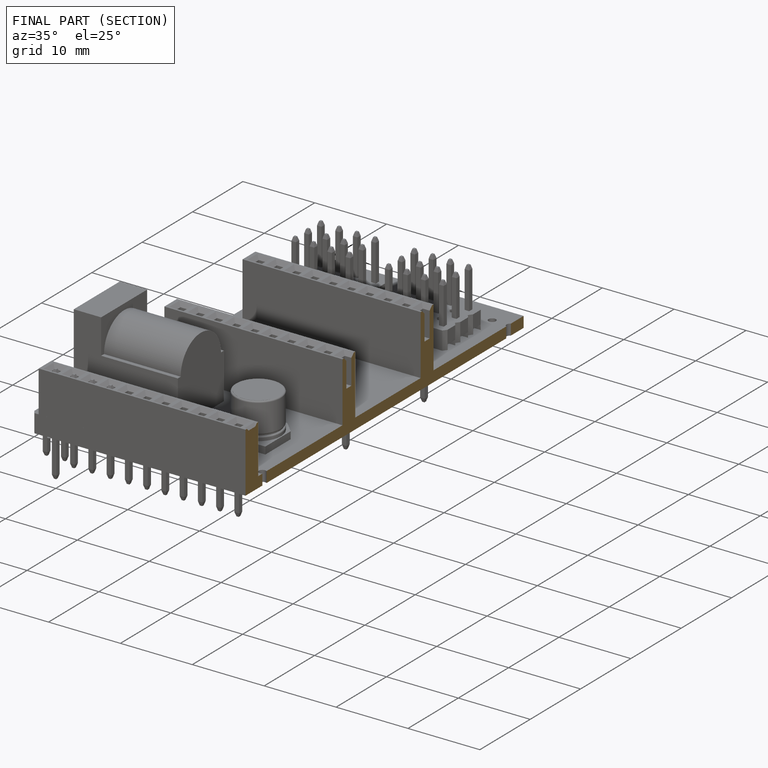
[diagram: finished part — half-section view (interior)]
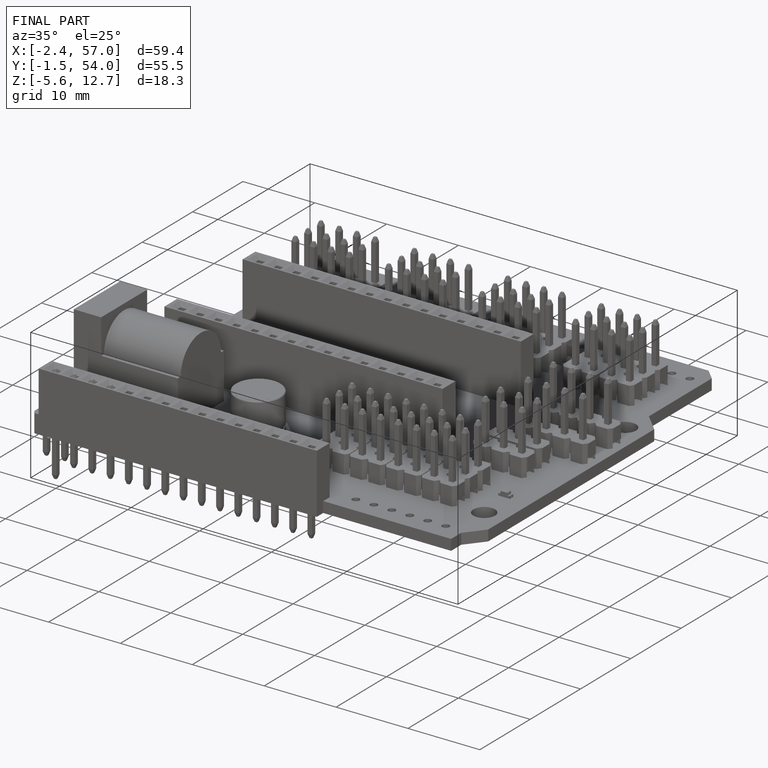
[diagram: finished part — iso view with bounding-box wireframe]
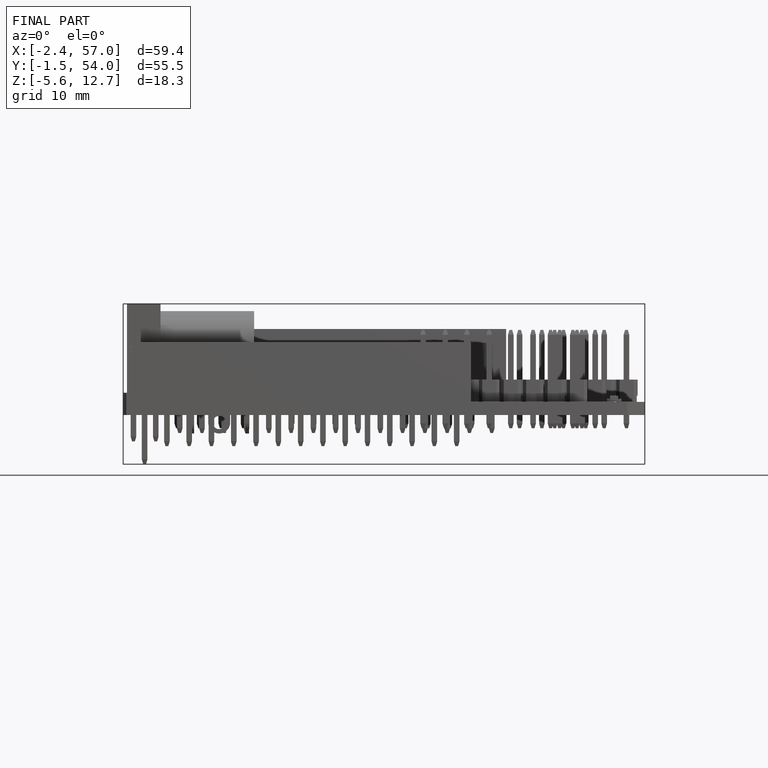
[diagram: finished part — front view with bounding-box wireframe]
